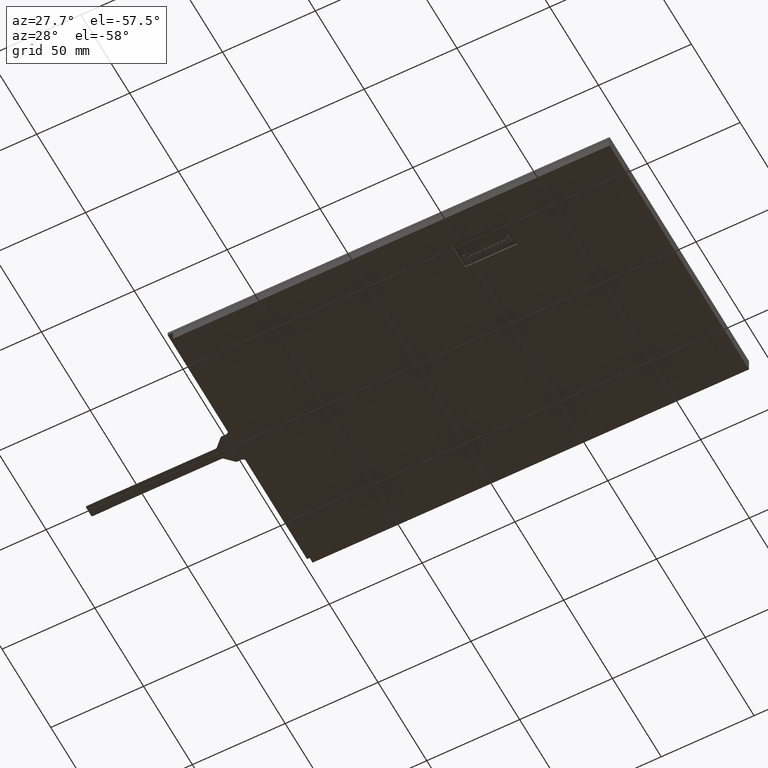
[diagram: clean part render]
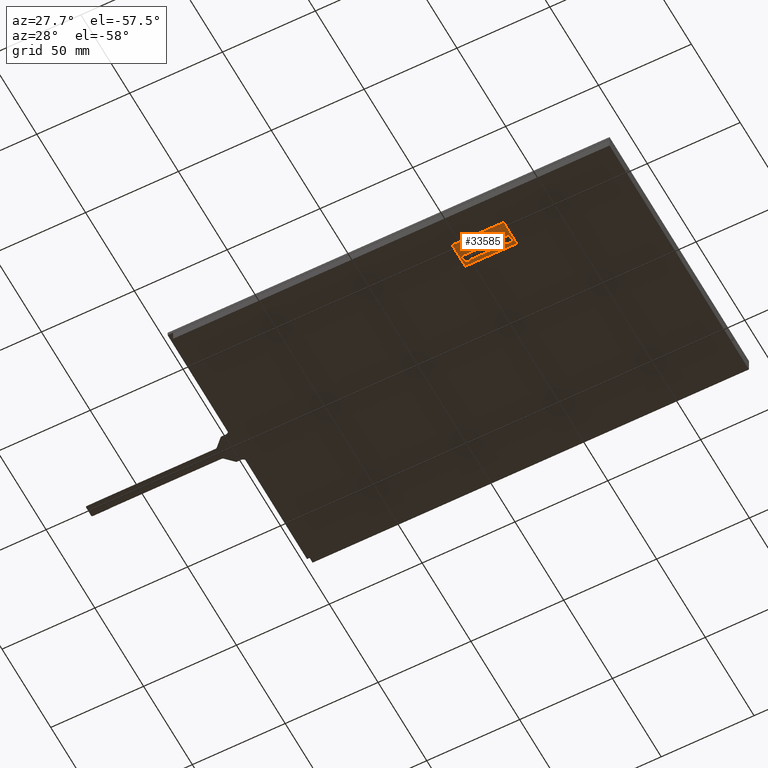
[diagram: same view with one face highlighted and labeled with its STEP entity id]
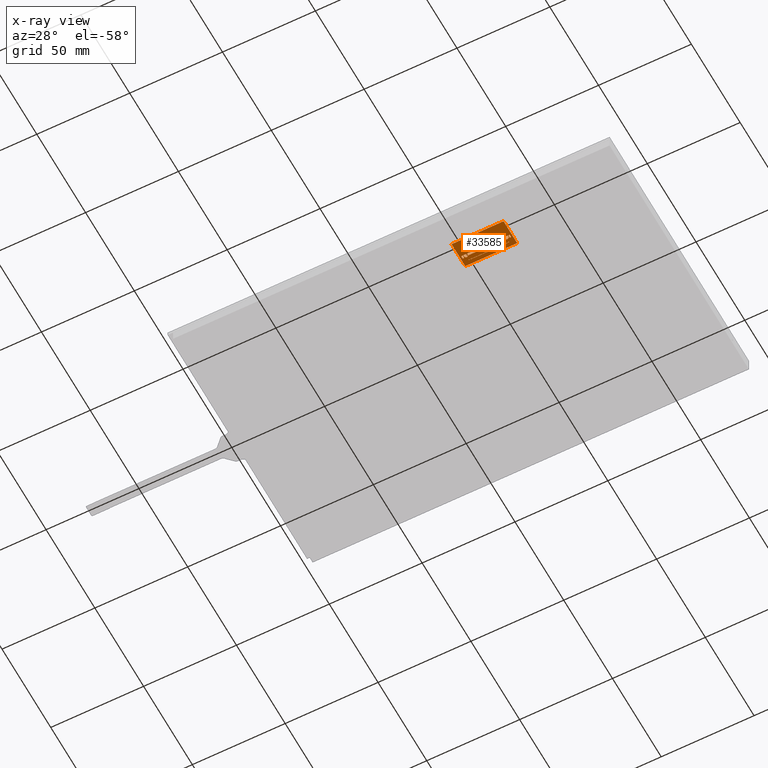
[diagram: x-ray of the same camera — body ghosted, the highlighted face saturated]
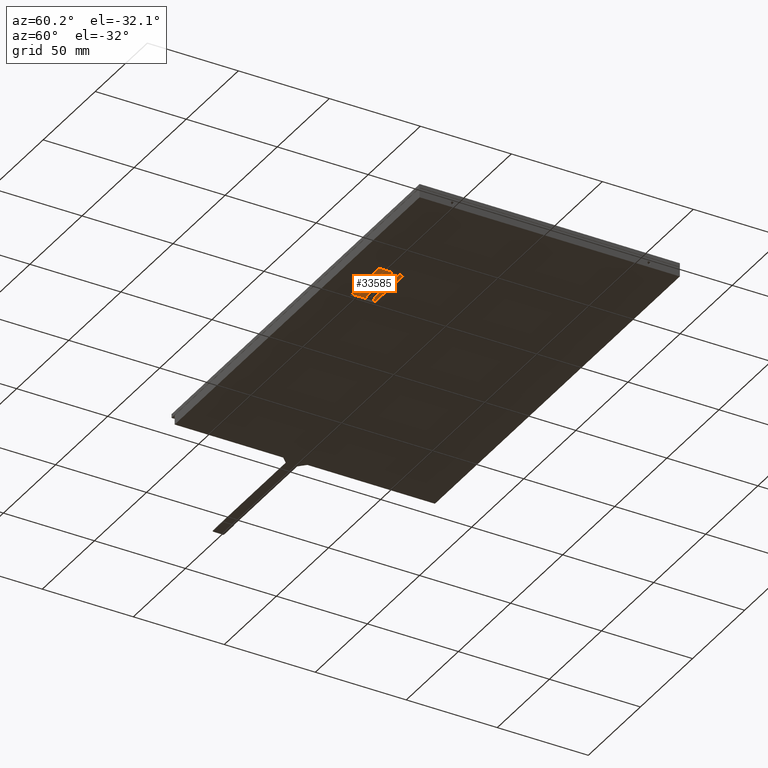
[diagram: same view with one face highlighted and labeled with its STEP entity id]
A machine part, auxiliary view. The second image highlights one B-rep face of the part: STEP entity #33585.
The next image is the same camera in x-ray: the body ghosted, the highlighted face saturated — about 0% of this face is hidden behind the body in this view.
A second angle (auxiliary view) of the same face is appended — the face is thin or edge-on in the first view.
In plain terms, the highlighted planar face has unit normal (-0, 0, 1).
Its self-contained STEP definition (entity closure, byte-faithful):
#801=CIRCLE('',#35353,0.3);
#805=CIRCLE('',#35371,0.3);
#814=CIRCLE('',#35392,0.3);
#871=CIRCLE('',#35465,0.3);
#1055=CIRCLE('',#35952,0.1);
#1056=CIRCLE('',#35955,0.1);
#1058=CIRCLE('',#35960,0.1);
#1061=CIRCLE('',#35965,0.1);
#1072=CIRCLE('',#36007,0.05);
#1074=CIRCLE('',#36010,0.05);
#1100=CIRCLE('',#36091,0.1);
#1105=CIRCLE('',#36098,0.1);
#1118=CIRCLE('',#36187,0.1);
#1119=CIRCLE('',#36190,0.1);
#1853=FACE_BOUND('',#5310,.T.);
#1854=FACE_BOUND('',#5311,.T.);
#1855=FACE_BOUND('',#5312,.T.);
#1856=FACE_BOUND('',#5313,.T.);
#1857=FACE_BOUND('',#5314,.T.);
#1858=FACE_BOUND('',#5315,.T.);
#1859=FACE_BOUND('',#5316,.T.);
#1860=FACE_BOUND('',#5317,.T.);
#1861=FACE_BOUND('',#5318,.T.);
#1862=FACE_BOUND('',#5319,.T.);
#1863=FACE_BOUND('',#5320,.T.);
#1864=FACE_BOUND('',#5321,.T.);
#1865=FACE_BOUND('',#5322,.T.);
#1866=FACE_BOUND('',#5323,.T.);
#1867=FACE_BOUND('',#5324,.T.);
#1868=FACE_BOUND('',#5325,.T.);
#1869=FACE_BOUND('',#5326,.T.);
#1870=FACE_BOUND('',#5327,.T.);
#1871=FACE_BOUND('',#5328,.T.);
#1872=FACE_BOUND('',#5329,.T.);
#1873=FACE_BOUND('',#5330,.T.);
#1874=FACE_BOUND('',#5331,.T.);
#1875=FACE_BOUND('',#5332,.T.);
#1876=FACE_BOUND('',#5333,.T.);
#1877=FACE_BOUND('',#5334,.T.);
#1878=FACE_BOUND('',#5335,.T.);
#1879=FACE_BOUND('',#5336,.T.);
#1880=FACE_BOUND('',#5337,.T.);
#1881=FACE_BOUND('',#5338,.T.);
#1882=FACE_BOUND('',#5339,.T.);
#1883=FACE_BOUND('',#5340,.T.);
#1884=FACE_BOUND('',#5341,.T.);
#1885=FACE_BOUND('',#5342,.T.);
#1886=FACE_BOUND('',#5343,.T.);
#1887=FACE_BOUND('',#5344,.T.);
#1888=FACE_BOUND('',#5345,.T.);
#1889=FACE_BOUND('',#5346,.T.);
#1890=FACE_BOUND('',#5347,.T.);
#1891=FACE_BOUND('',#5348,.T.);
#1892=FACE_BOUND('',#5349,.T.);
#1893=FACE_BOUND('',#5350,.T.);
#1894=FACE_BOUND('',#5351,.T.);
#1895=FACE_BOUND('',#5352,.T.);
#1896=FACE_BOUND('',#5353,.T.);
#1897=FACE_BOUND('',#5354,.T.);
#3552=FACE_OUTER_BOUND('',#5309,.T.);
#5309=EDGE_LOOP('',(#30501,#30502,#30503,#30504));
#5310=EDGE_LOOP('',(#30505,#30506,#30507,#30508));
#5311=EDGE_LOOP('',(#30509,#30510,#30511,#30512));
#5312=EDGE_LOOP('',(#30513,#30514,#30515,#30516));
#5313=EDGE_LOOP('',(#30517,#30518,#30519,#30520));
#5314=EDGE_LOOP('',(#30521,#30522,#30523,#30524));
#5315=EDGE_LOOP('',(#30525,#30526,#30527,#30528));
#5316=EDGE_LOOP('',(#30529,#30530,#30531,#30532));
#5317=EDGE_LOOP('',(#30533,#30534,#30535,#30536));
#5318=EDGE_LOOP('',(#30537,#30538,#30539,#30540));
#5319=EDGE_LOOP('',(#30541,#30542,#30543,#30544));
#5320=EDGE_LOOP('',(#30545,#30546,#30547,#30548));
#5321=EDGE_LOOP('',(#30549,#30550,#30551,#30552));
#5322=EDGE_LOOP('',(#30553,#30554,#30555,#30556));
#5323=EDGE_LOOP('',(#30557,#30558,#30559,#30560));
#5324=EDGE_LOOP('',(#30561,#30562,#30563,#30564));
#5325=EDGE_LOOP('',(#30565,#30566,#30567,#30568));
#5326=EDGE_LOOP('',(#30569,#30570,#30571,#30572));
#5327=EDGE_LOOP('',(#30573,#30574,#30575,#30576));
#5328=EDGE_LOOP('',(#30577,#30578,#30579,#30580));
#5329=EDGE_LOOP('',(#30581,#30582,#30583,#30584));
#5330=EDGE_LOOP('',(#30585,#30586,#30587,#30588));
#5331=EDGE_LOOP('',(#30589,#30590,#30591,#30592));
#5332=EDGE_LOOP('',(#30593,#30594,#30595,#30596));
#5333=EDGE_LOOP('',(#30597,#30598,#30599,#30600));
#5334=EDGE_LOOP('',(#30601,#30602,#30603,#30604));
#5335=EDGE_LOOP('',(#30605,#30606,#30607,#30608));
#5336=EDGE_LOOP('',(#30609,#30610,#30611,#30612));
#5337=EDGE_LOOP('',(#30613,#30614,#30615,#30616));
#5338=EDGE_LOOP('',(#30617,#30618,#30619,#30620));
#5339=EDGE_LOOP('',(#30621,#30622,#30623,#30624));
#5340=EDGE_LOOP('',(#30625,#30626,#30627,#30628));
#5341=EDGE_LOOP('',(#30629,#30630,#30631,#30632));
#5342=EDGE_LOOP('',(#30633,#30634,#30635,#30636));
#5343=EDGE_LOOP('',(#30637,#30638,#30639,#30640));
#5344=EDGE_LOOP('',(#30641,#30642,#30643,#30644));
#5345=EDGE_LOOP('',(#30645,#30646,#30647,#30648));
#5346=EDGE_LOOP('',(#30649,#30650,#30651,#30652));
#5347=EDGE_LOOP('',(#30653,#30654,#30655,#30656));
#5348=EDGE_LOOP('',(#30657,#30658,#30659,#30660));
#5349=EDGE_LOOP('',(#30661,#30662,#30663,#30664));
#5350=EDGE_LOOP('',(#30665,#30666,#30667,#30668,#30669,#30670));
#5351=EDGE_LOOP('',(#30671,#30672,#30673,#30674,#30675,#30676));
#5352=EDGE_LOOP('',(#30677,#30678,#30679,#30680,#30681,#30682));
#5353=EDGE_LOOP('',(#30683,#30684,#30685,#30686,#30687,#30688));
#5354=EDGE_LOOP('',(#30689,#30690,#30691,#30692,#30693,#30694,#30695,#30696,
#30697,#30698,#30699,#30700,#30701,#30702,#30703,#30704,#30705,#30706,#30707,
#30708,#30709,#30710,#30711,#30712,#30713,#30714,#30715,#30716,#30717,#30718,
#30719,#30720,#30721,#30722,#30723,#30724,#30725,#30726));
#5660=LINE('',#46374,#9388);
#5662=LINE('',#46381,#9390);
#5682=LINE('',#46428,#9410);
#5684=LINE('',#46435,#9412);
#5704=LINE('',#46482,#9432);
#5706=LINE('',#46489,#9434);
#5726=LINE('',#46536,#9454);
#5728=LINE('',#46543,#9456);
#5748=LINE('',#46590,#9476);
#5750=LINE('',#46597,#9478);
#5770=LINE('',#46644,#9498);
#5772=LINE('',#46651,#9500);
#5792=LINE('',#46698,#9520);
#5794=LINE('',#46705,#9522);
#5814=LINE('',#46752,#9542);
#5816=LINE('',#46759,#9544);
#5836=LINE('',#46806,#9564);
#5838=LINE('',#46813,#9566);
#5858=LINE('',#46860,#9586);
#5860=LINE('',#46867,#9588);
#5880=LINE('',#46914,#9608);
#5882=LINE('',#46921,#9610);
#5902=LINE('',#46968,#9630);
#5904=LINE('',#46975,#9632);
#5924=LINE('',#47022,#9652);
#5926=LINE('',#47029,#9654);
#5946=LINE('',#47076,#9674);
#5948=LINE('',#47083,#9676);
#5968=LINE('',#47130,#9696);
#5970=LINE('',#47137,#9698);
#5990=LINE('',#47184,#9718);
#5992=LINE('',#47191,#9720);
#6012=LINE('',#47238,#9740);
#6014=LINE('',#47245,#9742);
#6034=LINE('',#47292,#9762);
#6036=LINE('',#47299,#9764);
#6056=LINE('',#47346,#9784);
#6058=LINE('',#47353,#9786);
#6078=LINE('',#47400,#9806);
#6080=LINE('',#47407,#9808);
#6100=LINE('',#47454,#9828);
#6102=LINE('',#47461,#9830);
#6122=LINE('',#47508,#9850);
#6124=LINE('',#47515,#9852);
#6144=LINE('',#47562,#9872);
#6146=LINE('',#47569,#9874);
#6166=LINE('',#47616,#9894);
#6168=LINE('',#47623,#9896);
#6188=LINE('',#47670,#9916);
#6190=LINE('',#47677,#9918);
#6210=LINE('',#47724,#9938);
#6212=LINE('',#47731,#9940);
#6232=LINE('',#47778,#9960);
#6234=LINE('',#47785,#9962);
#6254=LINE('',#47832,#9982);
#6256=LINE('',#47839,#9984);
#6276=LINE('',#47886,#10004);
#6278=LINE('',#47893,#10006);
#6298=LINE('',#47940,#10026);
#6300=LINE('',#47947,#10028);
#6320=LINE('',#47994,#10048);
#6322=LINE('',#48001,#10050);
#6342=LINE('',#48048,#10070);
#6344=LINE('',#48055,#10072);
#6364=LINE('',#48102,#10092);
#6366=LINE('',#48109,#10094);
#6386=LINE('',#48156,#10114);
#6388=LINE('',#48163,#10116);
#6408=LINE('',#48210,#10136);
#6410=LINE('',#48217,#10138);
#6430=LINE('',#48264,#10158);
#6432=LINE('',#48271,#10160);
#6452=LINE('',#48318,#10180);
#6454=LINE('',#48325,#10182);
#6474=LINE('',#48372,#10202);
#6476=LINE('',#48379,#10204);
#6496=LINE('',#48426,#10224);
#6498=LINE('',#48433,#10226);
#6518=LINE('',#48480,#10246);
#6520=LINE('',#48487,#10248);
#6538=LINE('',#48532,#10266);
#6543=LINE('',#48543,#10271);
#6548=LINE('',#48558,#10276);
#6553=LINE('',#48569,#10281);
#6558=LINE('',#48584,#10286);
#6563=LINE('',#48595,#10291);
#6568=LINE('',#48610,#10296);
#6573=LINE('',#48621,#10301);
#6578=LINE('',#48636,#10306);
#6583=LINE('',#48647,#10311);
#6588=LINE('',#48662,#10316);
#6593=LINE('',#48673,#10321);
#6598=LINE('',#48688,#10326);
#6603=LINE('',#48699,#10331);
#6608=LINE('',#48714,#10336);
#6613=LINE('',#48725,#10341);
#6618=LINE('',#48740,#10346);
#6623=LINE('',#48751,#10351);
#6628=LINE('',#48766,#10356);
#6633=LINE('',#48777,#10361);
#6638=LINE('',#48792,#10366);
#6643=LINE('',#48803,#10371);
#6648=LINE('',#48818,#10376);
#6653=LINE('',#48829,#10381);
#6658=LINE('',#48844,#10386);
#6663=LINE('',#48855,#10391);
#6668=LINE('',#48870,#10396);
#6673=LINE('',#48881,#10401);
#6678=LINE('',#48896,#10406);
#6683=LINE('',#48907,#10411);
#6688=LINE('',#48922,#10416);
#6693=LINE('',#48933,#10421);
#6698=LINE('',#48948,#10426);
#6703=LINE('',#48959,#10431);
#6708=LINE('',#48974,#10436);
#6713=LINE('',#48985,#10441);
#6718=LINE('',#49000,#10446);
#6723=LINE('',#49011,#10451);
#6728=LINE('',#49026,#10456);
#6733=LINE('',#49037,#10461);
#6738=LINE('',#49052,#10466);
#6743=LINE('',#49063,#10471);
#6748=LINE('',#49078,#10476);
#6753=LINE('',#49089,#10481);
#6758=LINE('',#49104,#10486);
#6763=LINE('',#49115,#10491);
#6768=LINE('',#49130,#10496);
#6773=LINE('',#49141,#10501);
#6778=LINE('',#49156,#10506);
#6783=LINE('',#49167,#10511);
#6788=LINE('',#49182,#10516);
#6793=LINE('',#49193,#10521);
#6798=LINE('',#49208,#10526);
#6803=LINE('',#49219,#10531);
#6808=LINE('',#49234,#10536);
#6813=LINE('',#49245,#10541);
#6818=LINE('',#49260,#10546);
#6823=LINE('',#49271,#10551);
#6828=LINE('',#49286,#10556);
#6833=LINE('',#49297,#10561);
#6838=LINE('',#49312,#10566);
#6843=LINE('',#49323,#10571);
#6848=LINE('',#49338,#10576);
#6853=LINE('',#49349,#10581);
#6858=LINE('',#49364,#10586);
#6863=LINE('',#49375,#10591);
#6868=LINE('',#49390,#10596);
#6873=LINE('',#49401,#10601);
#6878=LINE('',#49416,#10606);
#6883=LINE('',#49427,#10611);
#6888=LINE('',#49442,#10616);
#6893=LINE('',#49453,#10621);
#6898=LINE('',#49468,#10626);
#6903=LINE('',#49479,#10631);
#6908=LINE('',#49494,#10636);
#6913=LINE('',#49505,#10641);
#6918=LINE('',#49520,#10646);
#6923=LINE('',#49531,#10651);
#6928=LINE('',#49546,#10656);
#6933=LINE('',#49557,#10661);
#7422=LINE('',#50902,#11150);
#7467=LINE('',#50979,#11195);
#7479=LINE('',#51008,#11207);
#7480=LINE('',#51014,#11208);
#7482=LINE('',#51020,#11210);
#7495=LINE('',#51053,#11223);
#7502=LINE('',#51076,#11230);
#7505=LINE('',#51086,#11233);
#7622=LINE('',#51402,#11350);
#7627=LINE('',#51411,#11355);
#7640=LINE('',#51436,#11368);
#7645=LINE('',#51449,#11373);
#7648=LINE('',#51459,#11376);
#7665=LINE('',#51497,#11393);
#7669=LINE('',#51510,#11397);
#7706=LINE('',#51613,#11434);
#8268=LINE('',#53957,#11996);
#8271=LINE('',#53964,#11999);
#8272=LINE('',#53971,#12000);
#8274=LINE('',#53978,#12002);
#8277=LINE('',#53987,#12005);
#8278=LINE('',#53992,#12006);
#8279=LINE('',#53999,#12007);
#8347=LINE('',#54173,#12075);
#8376=LINE('',#54259,#12104);
#8484=LINE('',#54562,#12212);
#8561=LINE('',#54953,#12289);
#8563=LINE('',#54960,#12291);
#8567=LINE('',#54968,#12295);
#8570=LINE('',#54977,#12298);
#8573=LINE('',#54987,#12301);
#8578=LINE('',#55001,#12306);
#8582=LINE('',#55010,#12310);
#8585=LINE('',#55020,#12313);
#8590=LINE('',#55034,#12318);
#8592=LINE('',#55041,#12320);
#8596=LINE('',#55048,#12324);
#8598=LINE('',#55055,#12326);
#8655=LINE('',#55173,#12383);
#8659=LINE('',#55194,#12387);
#8847=LINE('',#55625,#12575);
#8849=LINE('',#55628,#12577);
#8851=LINE('',#55631,#12579);
#8854=LINE('',#55640,#12582);
#8907=LINE('',#55751,#12635);
#8910=LINE('',#55761,#12638);
#9039=LINE('',#56066,#12767);
#9043=LINE('',#56077,#12771);
#9079=LINE('',#57057,#12807);
#9080=LINE('',#57059,#12808);
#9081=LINE('',#57061,#12809);
#9082=LINE('',#57062,#12810);
#9388=VECTOR('',#37011,10.);
#9390=VECTOR('',#37017,10.);
#9410=VECTOR('',#37057,10.);
#9412=VECTOR('',#37063,10.);
#9432=VECTOR('',#37103,10.);
#9434=VECTOR('',#37109,10.);
#9454=VECTOR('',#37149,10.);
#9456=VECTOR('',#37155,10.);
#9476=VECTOR('',#37195,10.);
#9478=VECTOR('',#37201,10.);
#9498=VECTOR('',#37241,10.);
#9500=VECTOR('',#37247,10.);
#9520=VECTOR('',#37287,10.);
#9522=VECTOR('',#37293,10.);
#9542=VECTOR('',#37333,10.);
#9544=VECTOR('',#37339,10.);
#9564=VECTOR('',#37379,10.);
#9566=VECTOR('',#37385,10.);
#9586=VECTOR('',#37425,10.);
#9588=VECTOR('',#37431,10.);
#9608=VECTOR('',#37471,10.);
#9610=VECTOR('',#37477,10.);
#9630=VECTOR('',#37517,10.);
#9632=VECTOR('',#37523,10.);
#9652=VECTOR('',#37563,10.);
#9654=VECTOR('',#37569,10.);
#9674=VECTOR('',#37609,10.);
#9676=VECTOR('',#37615,10.);
#9696=VECTOR('',#37655,10.);
#9698=VECTOR('',#37661,10.);
#9718=VECTOR('',#37701,10.);
#9720=VECTOR('',#37707,10.);
#9740=VECTOR('',#37747,10.);
#9742=VECTOR('',#37753,10.);
#9762=VECTOR('',#37793,10.);
#9764=VECTOR('',#37799,10.);
#9784=VECTOR('',#37839,10.);
#9786=VECTOR('',#37845,10.);
#9806=VECTOR('',#37885,10.);
#9808=VECTOR('',#37891,10.);
#9828=VECTOR('',#37931,10.);
#9830=VECTOR('',#37937,10.);
#9850=VECTOR('',#37977,10.);
#9852=VECTOR('',#37983,10.);
#9872=VECTOR('',#38023,10.);
#9874=VECTOR('',#38029,10.);
#9894=VECTOR('',#38069,10.);
#9896=VECTOR('',#38075,10.);
#9916=VECTOR('',#38115,10.);
#9918=VECTOR('',#38121,10.);
#9938=VECTOR('',#38161,10.);
#9940=VECTOR('',#38167,10.);
#9960=VECTOR('',#38207,10.);
#9962=VECTOR('',#38213,10.);
#9982=VECTOR('',#38253,10.);
#9984=VECTOR('',#38259,10.);
#10004=VECTOR('',#38299,10.);
#10006=VECTOR('',#38305,10.);
#10026=VECTOR('',#38345,10.);
#10028=VECTOR('',#38351,10.);
#10048=VECTOR('',#38391,10.);
#10050=VECTOR('',#38397,10.);
#10070=VECTOR('',#38437,10.);
#10072=VECTOR('',#38443,10.);
#10092=VECTOR('',#38483,10.);
#10094=VECTOR('',#38489,10.);
#10114=VECTOR('',#38529,10.);
#10116=VECTOR('',#38535,10.);
#10136=VECTOR('',#38575,10.);
#10138=VECTOR('',#38581,10.);
#10158=VECTOR('',#38621,10.);
#10160=VECTOR('',#38627,10.);
#10180=VECTOR('',#38667,10.);
#10182=VECTOR('',#38673,10.);
#10202=VECTOR('',#38713,10.);
#10204=VECTOR('',#38719,10.);
#10224=VECTOR('',#38759,10.);
#10226=VECTOR('',#38765,10.);
#10246=VECTOR('',#38805,10.);
#10248=VECTOR('',#38811,10.);
#10266=VECTOR('',#38853,10.);
#10271=VECTOR('',#38864,10.);
#10276=VECTOR('',#38879,10.);
#10281=VECTOR('',#38890,10.);
#10286=VECTOR('',#38905,10.);
#10291=VECTOR('',#38916,10.);
#10296=VECTOR('',#38931,10.);
#10301=VECTOR('',#38942,10.);
#10306=VECTOR('',#38957,10.);
#10311=VECTOR('',#38968,10.);
#10316=VECTOR('',#38983,10.);
#10321=VECTOR('',#38994,10.);
#10326=VECTOR('',#39009,10.);
#10331=VECTOR('',#39020,10.);
#10336=VECTOR('',#39035,10.);
#10341=VECTOR('',#39046,10.);
#10346=VECTOR('',#39061,10.);
#10351=VECTOR('',#39072,10.);
#10356=VECTOR('',#39087,10.);
#10361=VECTOR('',#39098,10.);
#10366=VECTOR('',#39113,10.);
#10371=VECTOR('',#39124,10.);
#10376=VECTOR('',#39139,10.);
#10381=VECTOR('',#39150,10.);
#10386=VECTOR('',#39165,10.);
#10391=VECTOR('',#39176,10.);
#10396=VECTOR('',#39191,10.);
#10401=VECTOR('',#39202,10.);
#10406=VECTOR('',#39217,10.);
#10411=VECTOR('',#39228,10.);
#10416=VECTOR('',#39243,10.);
#10421=VECTOR('',#39254,10.);
#10426=VECTOR('',#39269,10.);
#10431=VECTOR('',#39280,10.);
#10436=VECTOR('',#39295,10.);
#10441=VECTOR('',#39306,10.);
#10446=VECTOR('',#39321,10.);
#10451=VECTOR('',#39332,10.);
#10456=VECTOR('',#39347,10.);
#10461=VECTOR('',#39358,10.);
#10466=VECTOR('',#39373,10.);
#10471=VECTOR('',#39384,10.);
#10476=VECTOR('',#39399,10.);
#10481=VECTOR('',#39410,10.);
#10486=VECTOR('',#39425,10.);
#10491=VECTOR('',#39436,10.);
#10496=VECTOR('',#39451,10.);
#10501=VECTOR('',#39462,10.);
#10506=VECTOR('',#39477,10.);
#10511=VECTOR('',#39488,10.);
#10516=VECTOR('',#39503,10.);
#10521=VECTOR('',#39514,10.);
#10526=VECTOR('',#39529,10.);
#10531=VECTOR('',#39540,10.);
#10536=VECTOR('',#39555,10.);
#10541=VECTOR('',#39566,10.);
#10546=VECTOR('',#39581,10.);
#10551=VECTOR('',#39592,10.);
#10556=VECTOR('',#39607,10.);
#10561=VECTOR('',#39618,10.);
#10566=VECTOR('',#39633,10.);
#10571=VECTOR('',#39644,10.);
#10576=VECTOR('',#39659,10.);
#10581=VECTOR('',#39670,10.);
#10586=VECTOR('',#39685,10.);
#10591=VECTOR('',#39696,10.);
#10596=VECTOR('',#39711,10.);
#10601=VECTOR('',#39722,10.);
#10606=VECTOR('',#39737,10.);
#10611=VECTOR('',#39748,10.);
#10616=VECTOR('',#39763,10.);
#10621=VECTOR('',#39774,10.);
#10626=VECTOR('',#39789,10.);
#10631=VECTOR('',#39800,10.);
#10636=VECTOR('',#39815,10.);
#10641=VECTOR('',#39826,10.);
#10646=VECTOR('',#39841,10.);
#10651=VECTOR('',#39852,10.);
#10656=VECTOR('',#39867,10.);
#10661=VECTOR('',#39878,10.);
#11150=VECTOR('',#41267,10.);
#11195=VECTOR('',#41342,10.);
#11207=VECTOR('',#41364,10.);
#11208=VECTOR('',#41369,10.);
#11210=VECTOR('',#41375,10.);
#11223=VECTOR('',#41406,10.);
#11230=VECTOR('',#41429,10.);
#11233=VECTOR('',#41438,10.);
#11350=VECTOR('',#41697,10.);
#11355=VECTOR('',#41706,10.);
#11368=VECTOR('',#41731,10.);
#11373=VECTOR('',#41744,10.);
#11376=VECTOR('',#41753,10.);
#11393=VECTOR('',#41788,10.);
#11397=VECTOR('',#41800,10.);
#11434=VECTOR('',#41893,10.);
#11996=VECTOR('',#43327,10.);
#11999=VECTOR('',#43332,10.);
#12000=VECTOR('',#43341,10.);
#12002=VECTOR('',#43347,10.);
#12005=VECTOR('',#43356,10.);
#12006=VECTOR('',#43361,10.);
#12007=VECTOR('',#43370,10.);
#12075=VECTOR('',#43548,10.);
#12104=VECTOR('',#43647,10.);
#12212=VECTOR('',#43981,10.);
#12289=VECTOR('',#44220,10.);
#12291=VECTOR('',#44228,10.);
#12295=VECTOR('',#44236,10.);
#12298=VECTOR('',#44245,10.);
#12301=VECTOR('',#44256,10.);
#12306=VECTOR('',#44269,10.);
#12310=VECTOR('',#44275,10.);
#12313=VECTOR('',#44286,10.);
#12318=VECTOR('',#44301,10.);
#12320=VECTOR('',#44309,10.);
#12324=VECTOR('',#44315,10.);
#12326=VECTOR('',#44325,10.);
#12383=VECTOR('',#44438,10.);
#12387=VECTOR('',#44460,10.);
#12575=VECTOR('',#44872,10.);
#12577=VECTOR('',#44876,10.);
#12579=VECTOR('',#44880,10.);
#12582=VECTOR('',#44891,10.);
#12635=VECTOR('',#45000,10.);
#12638=VECTOR('',#45011,10.);
#12767=VECTOR('',#45292,10.);
#12771=VECTOR('',#45304,10.);
#12807=VECTOR('',#45600,10.);
#12808=VECTOR('',#45601,10.);
#12809=VECTOR('',#45602,10.);
#12810=VECTOR('',#45603,10.);
#13066=VERTEX_POINT('',#46371);
#13067=VERTEX_POINT('',#46373);
#13069=VERTEX_POINT('',#46378);
#13070=VERTEX_POINT('',#46380);
#13086=VERTEX_POINT('',#46425);
#13087=VERTEX_POINT('',#46427);
#13089=VERTEX_POINT('',#46432);
#13090=VERTEX_POINT('',#46434);
#13106=VERTEX_POINT('',#46479);
#13107=VERTEX_POINT('',#46481);
#13109=VERTEX_POINT('',#46486);
#13110=VERTEX_POINT('',#46488);
#13126=VERTEX_POINT('',#46533);
#13127=VERTEX_POINT('',#46535);
#13129=VERTEX_POINT('',#46540);
#13130=VERTEX_POINT('',#46542);
#13146=VERTEX_POINT('',#46587);
#13147=VERTEX_POINT('',#46589);
#13149=VERTEX_POINT('',#46594);
#13150=VERTEX_POINT('',#46596);
#13166=VERTEX_POINT('',#46641);
#13167=VERTEX_POINT('',#46643);
#13169=VERTEX_POINT('',#46648);
#13170=VERTEX_POINT('',#46650);
#13186=VERTEX_POINT('',#46695);
#13187=VERTEX_POINT('',#46697);
#13189=VERTEX_POINT('',#46702);
#13190=VERTEX_POINT('',#46704);
#13206=VERTEX_POINT('',#46749);
#13207=VERTEX_POINT('',#46751);
#13209=VERTEX_POINT('',#46756);
#13210=VERTEX_POINT('',#46758);
#13226=VERTEX_POINT('',#46803);
#13227=VERTEX_POINT('',#46805);
#13229=VERTEX_POINT('',#46810);
#13230=VERTEX_POINT('',#46812);
#13246=VERTEX_POINT('',#46857);
#13247=VERTEX_POINT('',#46859);
#13249=VERTEX_POINT('',#46864);
#13250=VERTEX_POINT('',#46866);
#13266=VERTEX_POINT('',#46911);
#13267=VERTEX_POINT('',#46913);
#13269=VERTEX_POINT('',#46918);
#13270=VERTEX_POINT('',#46920);
#13286=VERTEX_POINT('',#46965);
#13287=VERTEX_POINT('',#46967);
#13289=VERTEX_POINT('',#46972);
#13290=VERTEX_POINT('',#46974);
#13306=VERTEX_POINT('',#47019);
#13307=VERTEX_POINT('',#47021);
#13309=VERTEX_POINT('',#47026);
#13310=VERTEX_POINT('',#47028);
#13326=VERTEX_POINT('',#47073);
#13327=VERTEX_POINT('',#47075);
#13329=VERTEX_POINT('',#47080);
#13330=VERTEX_POINT('',#47082);
#13346=VERTEX_POINT('',#47127);
#13347=VERTEX_POINT('',#47129);
#13349=VERTEX_POINT('',#47134);
#13350=VERTEX_POINT('',#47136);
#13366=VERTEX_POINT('',#47181);
#13367=VERTEX_POINT('',#47183);
#13369=VERTEX_POINT('',#47188);
#13370=VERTEX_POINT('',#47190);
#13386=VERTEX_POINT('',#47235);
#13387=VERTEX_POINT('',#47237);
#13389=VERTEX_POINT('',#47242);
#13390=VERTEX_POINT('',#47244);
#13406=VERTEX_POINT('',#47289);
#13407=VERTEX_POINT('',#47291);
#13409=VERTEX_POINT('',#47296);
#13410=VERTEX_POINT('',#47298);
#13426=VERTEX_POINT('',#47343);
#13427=VERTEX_POINT('',#47345);
#13429=VERTEX_POINT('',#47350);
#13430=VERTEX_POINT('',#47352);
#13446=VERTEX_POINT('',#47397);
#13447=VERTEX_POINT('',#47399);
#13449=VERTEX_POINT('',#47404);
#13450=VERTEX_POINT('',#47406);
#13466=VERTEX_POINT('',#47451);
#13467=VERTEX_POINT('',#47453);
#13469=VERTEX_POINT('',#47458);
#13470=VERTEX_POINT('',#47460);
#13486=VERTEX_POINT('',#47505);
#13487=VERTEX_POINT('',#47507);
#13489=VERTEX_POINT('',#47512);
#13490=VERTEX_POINT('',#47514);
#13506=VERTEX_POINT('',#47559);
#13507=VERTEX_POINT('',#47561);
#13509=VERTEX_POINT('',#47566);
#13510=VERTEX_POINT('',#47568);
#13526=VERTEX_POINT('',#47613);
#13527=VERTEX_POINT('',#47615);
#13529=VERTEX_POINT('',#47620);
#13530=VERTEX_POINT('',#47622);
#13546=VERTEX_POINT('',#47667);
#13547=VERTEX_POINT('',#47669);
#13549=VERTEX_POINT('',#47674);
#13550=VERTEX_POINT('',#47676);
#13566=VERTEX_POINT('',#47721);
#13567=VERTEX_POINT('',#47723);
#13569=VERTEX_POINT('',#47728);
#13570=VERTEX_POINT('',#47730);
#13586=VERTEX_POINT('',#47775);
#13587=VERTEX_POINT('',#47777);
#13589=VERTEX_POINT('',#47782);
#13590=VERTEX_POINT('',#47784);
#13606=VERTEX_POINT('',#47829);
#13607=VERTEX_POINT('',#47831);
#13609=VERTEX_POINT('',#47836);
#13610=VERTEX_POINT('',#47838);
#13626=VERTEX_POINT('',#47883);
#13627=VERTEX_POINT('',#47885);
#13629=VERTEX_POINT('',#47890);
#13630=VERTEX_POINT('',#47892);
#13646=VERTEX_POINT('',#47937);
#13647=VERTEX_POINT('',#47939);
#13649=VERTEX_POINT('',#47944);
#13650=VERTEX_POINT('',#47946);
#13666=VERTEX_POINT('',#47991);
#13667=VERTEX_POINT('',#47993);
#13669=VERTEX_POINT('',#47998);
#13670=VERTEX_POINT('',#48000);
#13686=VERTEX_POINT('',#48045);
#13687=VERTEX_POINT('',#48047);
#13689=VERTEX_POINT('',#48052);
#13690=VERTEX_POINT('',#48054);
#13706=VERTEX_POINT('',#48099);
#13707=VERTEX_POINT('',#48101);
#13709=VERTEX_POINT('',#48106);
#13710=VERTEX_POINT('',#48108);
#13726=VERTEX_POINT('',#48153);
#13727=VERTEX_POINT('',#48155);
#13729=VERTEX_POINT('',#48160);
#13730=VERTEX_POINT('',#48162);
#13746=VERTEX_POINT('',#48207);
#13747=VERTEX_POINT('',#48209);
#13749=VERTEX_POINT('',#48214);
#13750=VERTEX_POINT('',#48216);
#13766=VERTEX_POINT('',#48261);
#13767=VERTEX_POINT('',#48263);
#13769=VERTEX_POINT('',#48268);
#13770=VERTEX_POINT('',#48270);
#13786=VERTEX_POINT('',#48315);
#13787=VERTEX_POINT('',#48317);
#13789=VERTEX_POINT('',#48322);
#13790=VERTEX_POINT('',#48324);
#13806=VERTEX_POINT('',#48369);
#13807=VERTEX_POINT('',#48371);
#13809=VERTEX_POINT('',#48376);
#13810=VERTEX_POINT('',#48378);
#13826=VERTEX_POINT('',#48423);
#13827=VERTEX_POINT('',#48425);
#13829=VERTEX_POINT('',#48430);
#13830=VERTEX_POINT('',#48432);
#13846=VERTEX_POINT('',#48477);
#13847=VERTEX_POINT('',#48479);
#13849=VERTEX_POINT('',#48484);
#13850=VERTEX_POINT('',#48486);
#14585=VERTEX_POINT('',#50899);
#14586=VERTEX_POINT('',#50901);
#14602=VERTEX_POINT('',#50975);
#14603=VERTEX_POINT('',#50977);
#14615=VERTEX_POINT('',#51006);
#14617=VERTEX_POINT('',#51011);
#14618=VERTEX_POINT('',#51013);
#14620=VERTEX_POINT('',#51019);
#14630=VERTEX_POINT('',#51049);
#14639=VERTEX_POINT('',#51075);
#14640=VERTEX_POINT('',#51079);
#14643=VERTEX_POINT('',#51084);
#14785=VERTEX_POINT('',#51453);
#14787=VERTEX_POINT('',#51457);
#14798=VERTEX_POINT('',#51494);
#14799=VERTEX_POINT('',#51496);
#14802=VERTEX_POINT('',#51506);
#14804=VERTEX_POINT('',#51509);
#14841=VERTEX_POINT('',#51610);
#14842=VERTEX_POINT('',#51612);
#15027=VERTEX_POINT('',#52193);
#15061=VERTEX_POINT('',#52291);
#15088=VERTEX_POINT('',#52361);
#15214=VERTEX_POINT('',#52653);
#15406=VERTEX_POINT('',#53962);
#15407=VERTEX_POINT('',#53963);
#15408=VERTEX_POINT('',#53968);
#15409=VERTEX_POINT('',#53970);
#15411=VERTEX_POINT('',#53975);
#15412=VERTEX_POINT('',#53977);
#15414=VERTEX_POINT('',#53983);
#15415=VERTEX_POINT('',#53985);
#15416=VERTEX_POINT('',#53989);
#15417=VERTEX_POINT('',#53991);
#15418=VERTEX_POINT('',#53995);
#15419=VERTEX_POINT('',#53997);
#15641=VERTEX_POINT('',#54959);
#15646=VERTEX_POINT('',#54976);
#15648=VERTEX_POINT('',#54982);
#15649=VERTEX_POINT('',#54986);
#15651=VERTEX_POINT('',#54992);
#15654=VERTEX_POINT('',#55000);
#15657=VERTEX_POINT('',#55007);
#15658=VERTEX_POINT('',#55009);
#15659=VERTEX_POINT('',#55013);
#15661=VERTEX_POINT('',#55019);
#15664=VERTEX_POINT('',#55027);
#15667=VERTEX_POINT('',#55040);
#15702=VERTEX_POINT('',#55170);
#15703=VERTEX_POINT('',#55172);
#15706=VERTEX_POINT('',#55180);
#15708=VERTEX_POINT('',#55186);
#15709=VERTEX_POINT('',#55190);
#15711=VERTEX_POINT('',#55193);
#15798=VERTEX_POINT('',#55488);
#15799=VERTEX_POINT('',#55489);
#15814=VERTEX_POINT('',#55524);
#15815=VERTEX_POINT('',#55525);
#15874=VERTEX_POINT('',#55750);
#15877=VERTEX_POINT('',#55760);
#15908=VERTEX_POINT('',#55866);
#15911=VERTEX_POINT('',#55876);
#16057=VERTEX_POINT('',#57055);
#16058=VERTEX_POINT('',#57056);
#16059=VERTEX_POINT('',#57058);
#16060=VERTEX_POINT('',#57060);
#16414=EDGE_CURVE('',#13066,#13067,#5660,.T.);
#16417=EDGE_CURVE('',#13070,#13069,#5662,.T.);
#16440=EDGE_CURVE('',#13086,#13087,#5682,.T.);
#16443=EDGE_CURVE('',#13090,#13089,#5684,.T.);
#16466=EDGE_CURVE('',#13106,#13107,#5704,.T.);
#16469=EDGE_CURVE('',#13110,#13109,#5706,.T.);
#16492=EDGE_CURVE('',#13126,#13127,#5726,.T.);
#16495=EDGE_CURVE('',#13130,#13129,#5728,.T.);
#16518=EDGE_CURVE('',#13146,#13147,#5748,.T.);
#16521=EDGE_CURVE('',#13150,#13149,#5750,.T.);
#16544=EDGE_CURVE('',#13166,#13167,#5770,.T.);
#16547=EDGE_CURVE('',#13170,#13169,#5772,.T.);
#16570=EDGE_CURVE('',#13186,#13187,#5792,.T.);
#16573=EDGE_CURVE('',#13190,#13189,#5794,.T.);
#16596=EDGE_CURVE('',#13206,#13207,#5814,.T.);
#16599=EDGE_CURVE('',#13210,#13209,#5816,.T.);
#16622=EDGE_CURVE('',#13226,#13227,#5836,.T.);
#16625=EDGE_CURVE('',#13230,#13229,#5838,.T.);
#16648=EDGE_CURVE('',#13246,#13247,#5858,.T.);
#16651=EDGE_CURVE('',#13250,#13249,#5860,.T.);
#16674=EDGE_CURVE('',#13266,#13267,#5880,.T.);
#16677=EDGE_CURVE('',#13270,#13269,#5882,.T.);
#16700=EDGE_CURVE('',#13286,#13287,#5902,.T.);
#16703=EDGE_CURVE('',#13290,#13289,#5904,.T.);
#16726=EDGE_CURVE('',#13306,#13307,#5924,.T.);
#16729=EDGE_CURVE('',#13310,#13309,#5926,.T.);
#16752=EDGE_CURVE('',#13326,#13327,#5946,.T.);
#16755=EDGE_CURVE('',#13330,#13329,#5948,.T.);
#16778=EDGE_CURVE('',#13346,#13347,#5968,.T.);
#16781=EDGE_CURVE('',#13350,#13349,#5970,.T.);
#16804=EDGE_CURVE('',#13366,#13367,#5990,.T.);
#16807=EDGE_CURVE('',#13370,#13369,#5992,.T.);
#16830=EDGE_CURVE('',#13386,#13387,#6012,.T.);
#16833=EDGE_CURVE('',#13390,#13389,#6014,.T.);
#16856=EDGE_CURVE('',#13406,#13407,#6034,.T.);
#16859=EDGE_CURVE('',#13410,#13409,#6036,.T.);
#16882=EDGE_CURVE('',#13426,#13427,#6056,.T.);
#16885=EDGE_CURVE('',#13430,#13429,#6058,.T.);
#16908=EDGE_CURVE('',#13446,#13447,#6078,.T.);
#16911=EDGE_CURVE('',#13450,#13449,#6080,.T.);
#16934=EDGE_CURVE('',#13466,#13467,#6100,.T.);
#16937=EDGE_CURVE('',#13470,#13469,#6102,.T.);
#16960=EDGE_CURVE('',#13486,#13487,#6122,.T.);
#16963=EDGE_CURVE('',#13490,#13489,#6124,.T.);
#16986=EDGE_CURVE('',#13506,#13507,#6144,.T.);
#16989=EDGE_CURVE('',#13510,#13509,#6146,.T.);
#17012=EDGE_CURVE('',#13526,#13527,#6166,.T.);
#17015=EDGE_CURVE('',#13530,#13529,#6168,.T.);
#17038=EDGE_CURVE('',#13546,#13547,#6188,.T.);
#17041=EDGE_CURVE('',#13550,#13549,#6190,.T.);
#17064=EDGE_CURVE('',#13566,#13567,#6210,.T.);
#17067=EDGE_CURVE('',#13570,#13569,#6212,.T.);
#17090=EDGE_CURVE('',#13586,#13587,#6232,.T.);
#17093=EDGE_CURVE('',#13590,#13589,#6234,.T.);
#17116=EDGE_CURVE('',#13606,#13607,#6254,.T.);
#17119=EDGE_CURVE('',#13610,#13609,#6256,.T.);
#17142=EDGE_CURVE('',#13626,#13627,#6276,.T.);
#17145=EDGE_CURVE('',#13630,#13629,#6278,.T.);
#17168=EDGE_CURVE('',#13646,#13647,#6298,.T.);
#17171=EDGE_CURVE('',#13650,#13649,#6300,.T.);
#17194=EDGE_CURVE('',#13666,#13667,#6320,.T.);
#17197=EDGE_CURVE('',#13670,#13669,#6322,.T.);
#17220=EDGE_CURVE('',#13686,#13687,#6342,.T.);
#17223=EDGE_CURVE('',#13690,#13689,#6344,.T.);
#17246=EDGE_CURVE('',#13706,#13707,#6364,.T.);
#17249=EDGE_CURVE('',#13710,#13709,#6366,.T.);
#17272=EDGE_CURVE('',#13726,#13727,#6386,.T.);
#17275=EDGE_CURVE('',#13730,#13729,#6388,.T.);
#17298=EDGE_CURVE('',#13746,#13747,#6408,.T.);
#17301=EDGE_CURVE('',#13750,#13749,#6410,.T.);
#17324=EDGE_CURVE('',#13766,#13767,#6430,.T.);
#17327=EDGE_CURVE('',#13770,#13769,#6432,.T.);
#17350=EDGE_CURVE('',#13786,#13787,#6452,.T.);
#17353=EDGE_CURVE('',#13790,#13789,#6454,.T.);
#17376=EDGE_CURVE('',#13806,#13807,#6474,.T.);
#17379=EDGE_CURVE('',#13810,#13809,#6476,.T.);
#17402=EDGE_CURVE('',#13826,#13827,#6496,.T.);
#17405=EDGE_CURVE('',#13830,#13829,#6498,.T.);
#17428=EDGE_CURVE('',#13846,#13847,#6518,.T.);
#17431=EDGE_CURVE('',#13850,#13849,#6520,.T.);
#17454=EDGE_CURVE('',#13069,#13067,#6538,.T.);
#17460=EDGE_CURVE('',#13066,#13070,#6543,.T.);
#17468=EDGE_CURVE('',#13089,#13087,#6548,.T.);
#17474=EDGE_CURVE('',#13086,#13090,#6553,.T.);
#17482=EDGE_CURVE('',#13109,#13107,#6558,.T.);
#17488=EDGE_CURVE('',#13106,#13110,#6563,.T.);
#17496=EDGE_CURVE('',#13129,#13127,#6568,.T.);
#17502=EDGE_CURVE('',#13126,#13130,#6573,.T.);
#17510=EDGE_CURVE('',#13149,#13147,#6578,.T.);
#17516=EDGE_CURVE('',#13146,#13150,#6583,.T.);
#17524=EDGE_CURVE('',#13169,#13167,#6588,.T.);
#17530=EDGE_CURVE('',#13166,#13170,#6593,.T.);
#17538=EDGE_CURVE('',#13189,#13187,#6598,.T.);
#17544=EDGE_CURVE('',#13186,#13190,#6603,.T.);
#17552=EDGE_CURVE('',#13209,#13207,#6608,.T.);
#17558=EDGE_CURVE('',#13206,#13210,#6613,.T.);
#17566=EDGE_CURVE('',#13229,#13227,#6618,.T.);
#17572=EDGE_CURVE('',#13226,#13230,#6623,.T.);
#17580=EDGE_CURVE('',#13249,#13247,#6628,.T.);
#17586=EDGE_CURVE('',#13246,#13250,#6633,.T.);
#17594=EDGE_CURVE('',#13269,#13267,#6638,.T.);
#17600=EDGE_CURVE('',#13266,#13270,#6643,.T.);
#17608=EDGE_CURVE('',#13289,#13287,#6648,.T.);
#17614=EDGE_CURVE('',#13286,#13290,#6653,.T.);
#17622=EDGE_CURVE('',#13309,#13307,#6658,.T.);
#17628=EDGE_CURVE('',#13306,#13310,#6663,.T.);
#17636=EDGE_CURVE('',#13329,#13327,#6668,.T.);
#17642=EDGE_CURVE('',#13326,#13330,#6673,.T.);
#17650=EDGE_CURVE('',#13349,#13347,#6678,.T.);
#17656=EDGE_CURVE('',#13346,#13350,#6683,.T.);
#17664=EDGE_CURVE('',#13369,#13367,#6688,.T.);
#17670=EDGE_CURVE('',#13366,#13370,#6693,.T.);
#17678=EDGE_CURVE('',#13389,#13387,#6698,.T.);
#17684=EDGE_CURVE('',#13386,#13390,#6703,.T.);
#17692=EDGE_CURVE('',#13409,#13407,#6708,.T.);
#17698=EDGE_CURVE('',#13406,#13410,#6713,.T.);
#17706=EDGE_CURVE('',#13429,#13427,#6718,.T.);
#17712=EDGE_CURVE('',#13426,#13430,#6723,.T.);
#17720=EDGE_CURVE('',#13449,#13447,#6728,.T.);
#17726=EDGE_CURVE('',#13446,#13450,#6733,.T.);
#17734=EDGE_CURVE('',#13469,#13467,#6738,.T.);
#17740=EDGE_CURVE('',#13466,#13470,#6743,.T.);
#17748=EDGE_CURVE('',#13489,#13487,#6748,.T.);
#17754=EDGE_CURVE('',#13486,#13490,#6753,.T.);
#17762=EDGE_CURVE('',#13509,#13507,#6758,.T.);
#17768=EDGE_CURVE('',#13506,#13510,#6763,.T.);
#17776=EDGE_CURVE('',#13529,#13527,#6768,.T.);
#17782=EDGE_CURVE('',#13526,#13530,#6773,.T.);
#17790=EDGE_CURVE('',#13549,#13547,#6778,.T.);
#17796=EDGE_CURVE('',#13546,#13550,#6783,.T.);
#17804=EDGE_CURVE('',#13569,#13567,#6788,.T.);
#17810=EDGE_CURVE('',#13566,#13570,#6793,.T.);
#17818=EDGE_CURVE('',#13589,#13587,#6798,.T.);
#17824=EDGE_CURVE('',#13586,#13590,#6803,.T.);
#17832=EDGE_CURVE('',#13609,#13607,#6808,.T.);
#17838=EDGE_CURVE('',#13606,#13610,#6813,.T.);
#17846=EDGE_CURVE('',#13629,#13627,#6818,.T.);
#17852=EDGE_CURVE('',#13626,#13630,#6823,.T.);
#17860=EDGE_CURVE('',#13649,#13647,#6828,.T.);
#17866=EDGE_CURVE('',#13646,#13650,#6833,.T.);
#17874=EDGE_CURVE('',#13669,#13667,#6838,.T.);
#17880=EDGE_CURVE('',#13666,#13670,#6843,.T.);
#17888=EDGE_CURVE('',#13689,#13687,#6848,.T.);
#17894=EDGE_CURVE('',#13686,#13690,#6853,.T.);
#17902=EDGE_CURVE('',#13709,#13707,#6858,.T.);
#17908=EDGE_CURVE('',#13706,#13710,#6863,.T.);
#17916=EDGE_CURVE('',#13729,#13727,#6868,.T.);
#17922=EDGE_CURVE('',#13726,#13730,#6873,.T.);
#17930=EDGE_CURVE('',#13749,#13747,#6878,.T.);
#17936=EDGE_CURVE('',#13746,#13750,#6883,.T.);
#17944=EDGE_CURVE('',#13769,#13767,#6888,.T.);
#17950=EDGE_CURVE('',#13766,#13770,#6893,.T.);
#17958=EDGE_CURVE('',#13789,#13787,#6898,.T.);
#17964=EDGE_CURVE('',#13786,#13790,#6903,.T.);
#17972=EDGE_CURVE('',#13809,#13807,#6908,.T.);
#17978=EDGE_CURVE('',#13806,#13810,#6913,.T.);
#17986=EDGE_CURVE('',#13829,#13827,#6918,.T.);
#17992=EDGE_CURVE('',#13826,#13830,#6923,.T.);
#18000=EDGE_CURVE('',#13849,#13847,#6928,.T.);
#18006=EDGE_CURVE('',#13846,#13850,#6933,.T.);
#18664=EDGE_CURVE('',#14586,#14585,#7422,.T.);
#18716=EDGE_CURVE('',#14602,#14603,#7467,.T.);
#18730=EDGE_CURVE('',#14585,#14615,#7479,.T.);
#18732=EDGE_CURVE('',#14618,#14617,#7480,.T.);
#18735=EDGE_CURVE('',#14620,#14586,#7482,.T.);
#18752=EDGE_CURVE('',#14630,#14602,#7495,.T.);
#18763=EDGE_CURVE('',#14603,#14639,#7502,.T.);
#18768=EDGE_CURVE('',#14643,#14640,#7505,.T.);
#18919=EDGE_CURVE('',#14615,#14618,#7622,.T.);
#18924=EDGE_CURVE('',#14617,#14620,#7627,.T.);
#18937=EDGE_CURVE('',#14643,#14630,#7640,.T.);
#18944=EDGE_CURVE('',#14639,#14640,#7645,.T.);
#18949=EDGE_CURVE('',#14785,#14787,#7648,.T.);
#18967=EDGE_CURVE('',#14799,#14798,#7665,.T.);
#18973=EDGE_CURVE('',#14802,#14804,#7669,.T.);
#19025=EDGE_CURVE('',#14842,#14841,#7706,.T.);
#19297=EDGE_CURVE('',#15027,#14799,#801,.T.);
#19348=EDGE_CURVE('',#15061,#14842,#805,.T.);
#19381=EDGE_CURVE('',#14798,#15088,#814,.T.);
#19531=EDGE_CURVE('',#14841,#15214,#871,.T.);
#19833=EDGE_CURVE('',#14802,#15027,#8268,.T.);
#19836=EDGE_CURVE('',#15406,#15407,#8271,.T.);
#19840=EDGE_CURVE('',#15408,#15409,#8272,.T.);
#19843=EDGE_CURVE('',#15412,#15411,#8274,.T.);
#19848=EDGE_CURVE('',#15414,#15415,#8277,.T.);
#19850=EDGE_CURVE('',#15416,#15417,#8278,.T.);
#19854=EDGE_CURVE('',#15419,#15418,#8279,.T.);
#19941=EDGE_CURVE('',#14787,#15061,#8347,.T.);
#19985=EDGE_CURVE('',#15088,#14804,#8376,.T.);
#20137=EDGE_CURVE('',#15214,#14785,#8484,.T.);
#20255=EDGE_CURVE('',#15408,#15412,#8561,.T.);
#20258=EDGE_CURVE('',#15641,#15409,#8563,.T.);
#20263=EDGE_CURVE('',#15407,#15641,#8567,.T.);
#20267=EDGE_CURVE('',#15646,#15406,#8570,.T.);
#20270=EDGE_CURVE('',#15648,#15646,#1055,.T.);
#20272=EDGE_CURVE('',#15649,#15648,#8573,.T.);
#20275=EDGE_CURVE('',#15651,#15649,#1056,.T.);
#20279=EDGE_CURVE('',#15654,#15651,#8578,.T.);
#20283=EDGE_CURVE('',#15658,#15657,#8582,.T.);
#20285=EDGE_CURVE('',#15659,#15658,#1058,.T.);
#20288=EDGE_CURVE('',#15661,#15659,#8585,.T.);
#20292=EDGE_CURVE('',#15664,#15661,#1061,.T.);
#20296=EDGE_CURVE('',#15416,#15664,#8590,.T.);
#20299=EDGE_CURVE('',#15667,#15417,#8592,.T.);
#20303=EDGE_CURVE('',#15415,#15667,#8596,.T.);
#20307=EDGE_CURVE('',#15411,#15414,#8598,.T.);
#20368=EDGE_CURVE('',#15703,#15702,#8655,.T.);
#20372=EDGE_CURVE('',#15706,#15654,#1072,.T.);
#20376=EDGE_CURVE('',#15657,#15708,#1074,.T.);
#20378=EDGE_CURVE('',#15709,#15711,#8659,.T.);
#20534=EDGE_CURVE('',#15798,#15799,#1100,.T.);
#20552=EDGE_CURVE('',#15814,#15815,#1105,.T.);
#20603=EDGE_CURVE('',#15815,#15703,#8847,.T.);
#20605=EDGE_CURVE('',#15702,#15706,#8849,.T.);
#20607=EDGE_CURVE('',#15708,#15711,#8851,.T.);
#20612=EDGE_CURVE('',#15709,#15798,#8854,.T.);
#20668=EDGE_CURVE('',#15799,#15874,#8907,.T.);
#20673=EDGE_CURVE('',#15877,#15814,#8910,.T.);
#20726=EDGE_CURVE('',#15874,#15908,#1118,.T.);
#20731=EDGE_CURVE('',#15911,#15877,#1119,.T.);
#20822=EDGE_CURVE('',#15908,#15418,#9039,.T.);
#20828=EDGE_CURVE('',#15419,#15911,#9043,.T.);
#20958=EDGE_CURVE('',#16057,#16058,#9079,.T.);
#20959=EDGE_CURVE('',#16059,#16057,#9080,.T.);
#20960=EDGE_CURVE('',#16060,#16059,#9081,.T.);
#20961=EDGE_CURVE('',#16058,#16060,#9082,.T.);
#30501=ORIENTED_EDGE('',*,*,#20958,.F.);
#30502=ORIENTED_EDGE('',*,*,#20959,.F.);
#30503=ORIENTED_EDGE('',*,*,#20960,.F.);
#30504=ORIENTED_EDGE('',*,*,#20961,.F.);
#30505=ORIENTED_EDGE('',*,*,#16417,.T.);
#30506=ORIENTED_EDGE('',*,*,#17454,.T.);
#30507=ORIENTED_EDGE('',*,*,#16414,.F.);
#30508=ORIENTED_EDGE('',*,*,#17460,.T.);
#30509=ORIENTED_EDGE('',*,*,#16443,.T.);
#30510=ORIENTED_EDGE('',*,*,#17468,.T.);
#30511=ORIENTED_EDGE('',*,*,#16440,.F.);
#30512=ORIENTED_EDGE('',*,*,#17474,.T.);
#30513=ORIENTED_EDGE('',*,*,#16469,.T.);
#30514=ORIENTED_EDGE('',*,*,#17482,.T.);
#30515=ORIENTED_EDGE('',*,*,#16466,.F.);
#30516=ORIENTED_EDGE('',*,*,#17488,.T.);
#30517=ORIENTED_EDGE('',*,*,#16495,.T.);
#30518=ORIENTED_EDGE('',*,*,#17496,.T.);
#30519=ORIENTED_EDGE('',*,*,#16492,.F.);
#30520=ORIENTED_EDGE('',*,*,#17502,.T.);
#30521=ORIENTED_EDGE('',*,*,#16521,.T.);
#30522=ORIENTED_EDGE('',*,*,#17510,.T.);
#30523=ORIENTED_EDGE('',*,*,#16518,.F.);
#30524=ORIENTED_EDGE('',*,*,#17516,.T.);
#30525=ORIENTED_EDGE('',*,*,#16547,.T.);
#30526=ORIENTED_EDGE('',*,*,#17524,.T.);
#30527=ORIENTED_EDGE('',*,*,#16544,.F.);
#30528=ORIENTED_EDGE('',*,*,#17530,.T.);
#30529=ORIENTED_EDGE('',*,*,#16573,.T.);
#30530=ORIENTED_EDGE('',*,*,#17538,.T.);
#30531=ORIENTED_EDGE('',*,*,#16570,.F.);
#30532=ORIENTED_EDGE('',*,*,#17544,.T.);
#30533=ORIENTED_EDGE('',*,*,#16599,.T.);
#30534=ORIENTED_EDGE('',*,*,#17552,.T.);
#30535=ORIENTED_EDGE('',*,*,#16596,.F.);
#30536=ORIENTED_EDGE('',*,*,#17558,.T.);
#30537=ORIENTED_EDGE('',*,*,#16625,.T.);
#30538=ORIENTED_EDGE('',*,*,#17566,.T.);
#30539=ORIENTED_EDGE('',*,*,#16622,.F.);
#30540=ORIENTED_EDGE('',*,*,#17572,.T.);
#30541=ORIENTED_EDGE('',*,*,#16651,.T.);
#30542=ORIENTED_EDGE('',*,*,#17580,.T.);
#30543=ORIENTED_EDGE('',*,*,#16648,.F.);
#30544=ORIENTED_EDGE('',*,*,#17586,.T.);
#30545=ORIENTED_EDGE('',*,*,#16677,.T.);
#30546=ORIENTED_EDGE('',*,*,#17594,.T.);
#30547=ORIENTED_EDGE('',*,*,#16674,.F.);
#30548=ORIENTED_EDGE('',*,*,#17600,.T.);
#30549=ORIENTED_EDGE('',*,*,#16703,.T.);
#30550=ORIENTED_EDGE('',*,*,#17608,.T.);
#30551=ORIENTED_EDGE('',*,*,#16700,.F.);
#30552=ORIENTED_EDGE('',*,*,#17614,.T.);
#30553=ORIENTED_EDGE('',*,*,#16729,.T.);
#30554=ORIENTED_EDGE('',*,*,#17622,.T.);
#30555=ORIENTED_EDGE('',*,*,#16726,.F.);
#30556=ORIENTED_EDGE('',*,*,#17628,.T.);
#30557=ORIENTED_EDGE('',*,*,#16755,.T.);
#30558=ORIENTED_EDGE('',*,*,#17636,.T.);
#30559=ORIENTED_EDGE('',*,*,#16752,.F.);
#30560=ORIENTED_EDGE('',*,*,#17642,.T.);
#30561=ORIENTED_EDGE('',*,*,#16781,.T.);
#30562=ORIENTED_EDGE('',*,*,#17650,.T.);
#30563=ORIENTED_EDGE('',*,*,#16778,.F.);
#30564=ORIENTED_EDGE('',*,*,#17656,.T.);
#30565=ORIENTED_EDGE('',*,*,#16807,.T.);
#30566=ORIENTED_EDGE('',*,*,#17664,.T.);
#30567=ORIENTED_EDGE('',*,*,#16804,.F.);
#30568=ORIENTED_EDGE('',*,*,#17670,.T.);
#30569=ORIENTED_EDGE('',*,*,#16833,.T.);
#30570=ORIENTED_EDGE('',*,*,#17678,.T.);
#30571=ORIENTED_EDGE('',*,*,#16830,.F.);
#30572=ORIENTED_EDGE('',*,*,#17684,.T.);
#30573=ORIENTED_EDGE('',*,*,#16859,.T.);
#30574=ORIENTED_EDGE('',*,*,#17692,.T.);
#30575=ORIENTED_EDGE('',*,*,#16856,.F.);
#30576=ORIENTED_EDGE('',*,*,#17698,.T.);
#30577=ORIENTED_EDGE('',*,*,#16885,.T.);
#30578=ORIENTED_EDGE('',*,*,#17706,.T.);
#30579=ORIENTED_EDGE('',*,*,#16882,.F.);
#30580=ORIENTED_EDGE('',*,*,#17712,.T.);
#30581=ORIENTED_EDGE('',*,*,#16911,.T.);
#30582=ORIENTED_EDGE('',*,*,#17720,.T.);
#30583=ORIENTED_EDGE('',*,*,#16908,.F.);
#30584=ORIENTED_EDGE('',*,*,#17726,.T.);
#30585=ORIENTED_EDGE('',*,*,#16937,.T.);
#30586=ORIENTED_EDGE('',*,*,#17734,.T.);
#30587=ORIENTED_EDGE('',*,*,#16934,.F.);
#30588=ORIENTED_EDGE('',*,*,#17740,.T.);
#30589=ORIENTED_EDGE('',*,*,#16963,.T.);
#30590=ORIENTED_EDGE('',*,*,#17748,.T.);
#30591=ORIENTED_EDGE('',*,*,#16960,.F.);
#30592=ORIENTED_EDGE('',*,*,#17754,.T.);
#30593=ORIENTED_EDGE('',*,*,#16989,.T.);
#30594=ORIENTED_EDGE('',*,*,#17762,.T.);
#30595=ORIENTED_EDGE('',*,*,#16986,.F.);
#30596=ORIENTED_EDGE('',*,*,#17768,.T.);
#30597=ORIENTED_EDGE('',*,*,#17015,.T.);
#30598=ORIENTED_EDGE('',*,*,#17776,.T.);
#30599=ORIENTED_EDGE('',*,*,#17012,.F.);
#30600=ORIENTED_EDGE('',*,*,#17782,.T.);
#30601=ORIENTED_EDGE('',*,*,#17041,.T.);
#30602=ORIENTED_EDGE('',*,*,#17790,.T.);
#30603=ORIENTED_EDGE('',*,*,#17038,.F.);
#30604=ORIENTED_EDGE('',*,*,#17796,.T.);
#30605=ORIENTED_EDGE('',*,*,#17067,.T.);
#30606=ORIENTED_EDGE('',*,*,#17804,.T.);
#30607=ORIENTED_EDGE('',*,*,#17064,.F.);
#30608=ORIENTED_EDGE('',*,*,#17810,.T.);
#30609=ORIENTED_EDGE('',*,*,#17093,.T.);
#30610=ORIENTED_EDGE('',*,*,#17818,.T.);
#30611=ORIENTED_EDGE('',*,*,#17090,.F.);
#30612=ORIENTED_EDGE('',*,*,#17824,.T.);
#30613=ORIENTED_EDGE('',*,*,#17119,.T.);
#30614=ORIENTED_EDGE('',*,*,#17832,.T.);
#30615=ORIENTED_EDGE('',*,*,#17116,.F.);
#30616=ORIENTED_EDGE('',*,*,#17838,.T.);
#30617=ORIENTED_EDGE('',*,*,#17145,.T.);
#30618=ORIENTED_EDGE('',*,*,#17846,.T.);
#30619=ORIENTED_EDGE('',*,*,#17142,.F.);
#30620=ORIENTED_EDGE('',*,*,#17852,.T.);
#30621=ORIENTED_EDGE('',*,*,#17171,.T.);
#30622=ORIENTED_EDGE('',*,*,#17860,.T.);
#30623=ORIENTED_EDGE('',*,*,#17168,.F.);
#30624=ORIENTED_EDGE('',*,*,#17866,.T.);
#30625=ORIENTED_EDGE('',*,*,#17197,.T.);
#30626=ORIENTED_EDGE('',*,*,#17874,.T.);
#30627=ORIENTED_EDGE('',*,*,#17194,.F.);
#30628=ORIENTED_EDGE('',*,*,#17880,.T.);
#30629=ORIENTED_EDGE('',*,*,#17223,.T.);
#30630=ORIENTED_EDGE('',*,*,#17888,.T.);
#30631=ORIENTED_EDGE('',*,*,#17220,.F.);
#30632=ORIENTED_EDGE('',*,*,#17894,.T.);
#30633=ORIENTED_EDGE('',*,*,#17249,.T.);
#30634=ORIENTED_EDGE('',*,*,#17902,.T.);
#30635=ORIENTED_EDGE('',*,*,#17246,.F.);
#30636=ORIENTED_EDGE('',*,*,#17908,.T.);
#30637=ORIENTED_EDGE('',*,*,#17275,.T.);
#30638=ORIENTED_EDGE('',*,*,#17916,.T.);
#30639=ORIENTED_EDGE('',*,*,#17272,.F.);
#30640=ORIENTED_EDGE('',*,*,#17922,.T.);
#30641=ORIENTED_EDGE('',*,*,#17301,.T.);
#30642=ORIENTED_EDGE('',*,*,#17930,.T.);
#30643=ORIENTED_EDGE('',*,*,#17298,.F.);
#30644=ORIENTED_EDGE('',*,*,#17936,.T.);
#30645=ORIENTED_EDGE('',*,*,#17327,.T.);
#30646=ORIENTED_EDGE('',*,*,#17944,.T.);
#30647=ORIENTED_EDGE('',*,*,#17324,.F.);
#30648=ORIENTED_EDGE('',*,*,#17950,.T.);
#30649=ORIENTED_EDGE('',*,*,#17353,.T.);
#30650=ORIENTED_EDGE('',*,*,#17958,.T.);
#30651=ORIENTED_EDGE('',*,*,#17350,.F.);
#30652=ORIENTED_EDGE('',*,*,#17964,.T.);
#30653=ORIENTED_EDGE('',*,*,#17379,.T.);
#30654=ORIENTED_EDGE('',*,*,#17972,.T.);
#30655=ORIENTED_EDGE('',*,*,#17376,.F.);
#30656=ORIENTED_EDGE('',*,*,#17978,.T.);
#30657=ORIENTED_EDGE('',*,*,#17405,.T.);
#30658=ORIENTED_EDGE('',*,*,#17986,.T.);
#30659=ORIENTED_EDGE('',*,*,#17402,.F.);
#30660=ORIENTED_EDGE('',*,*,#17992,.T.);
#30661=ORIENTED_EDGE('',*,*,#17431,.T.);
#30662=ORIENTED_EDGE('',*,*,#18000,.T.);
#30663=ORIENTED_EDGE('',*,*,#17428,.F.);
#30664=ORIENTED_EDGE('',*,*,#18006,.T.);
#30665=ORIENTED_EDGE('',*,*,#18732,.T.);
#30666=ORIENTED_EDGE('',*,*,#18924,.T.);
#30667=ORIENTED_EDGE('',*,*,#18735,.T.);
#30668=ORIENTED_EDGE('',*,*,#18664,.T.);
#30669=ORIENTED_EDGE('',*,*,#18730,.T.);
#30670=ORIENTED_EDGE('',*,*,#18919,.T.);
#30671=ORIENTED_EDGE('',*,*,#18768,.F.);
#30672=ORIENTED_EDGE('',*,*,#18937,.T.);
#30673=ORIENTED_EDGE('',*,*,#18752,.T.);
#30674=ORIENTED_EDGE('',*,*,#18716,.T.);
#30675=ORIENTED_EDGE('',*,*,#18763,.T.);
#30676=ORIENTED_EDGE('',*,*,#18944,.T.);
#30677=ORIENTED_EDGE('',*,*,#18973,.F.);
#30678=ORIENTED_EDGE('',*,*,#19833,.T.);
#30679=ORIENTED_EDGE('',*,*,#19297,.T.);
#30680=ORIENTED_EDGE('',*,*,#18967,.T.);
#30681=ORIENTED_EDGE('',*,*,#19381,.T.);
#30682=ORIENTED_EDGE('',*,*,#19985,.T.);
#30683=ORIENTED_EDGE('',*,*,#19025,.T.);
#30684=ORIENTED_EDGE('',*,*,#19531,.T.);
#30685=ORIENTED_EDGE('',*,*,#20137,.T.);
#30686=ORIENTED_EDGE('',*,*,#18949,.T.);
#30687=ORIENTED_EDGE('',*,*,#19941,.T.);
#30688=ORIENTED_EDGE('',*,*,#19348,.T.);
#30689=ORIENTED_EDGE('',*,*,#20552,.T.);
#30690=ORIENTED_EDGE('',*,*,#20603,.T.);
#30691=ORIENTED_EDGE('',*,*,#20368,.T.);
#30692=ORIENTED_EDGE('',*,*,#20605,.T.);
#30693=ORIENTED_EDGE('',*,*,#20372,.T.);
#30694=ORIENTED_EDGE('',*,*,#20279,.T.);
#30695=ORIENTED_EDGE('',*,*,#20275,.T.);
#30696=ORIENTED_EDGE('',*,*,#20272,.T.);
#30697=ORIENTED_EDGE('',*,*,#20270,.T.);
#30698=ORIENTED_EDGE('',*,*,#20267,.T.);
#30699=ORIENTED_EDGE('',*,*,#19836,.T.);
#30700=ORIENTED_EDGE('',*,*,#20263,.T.);
#30701=ORIENTED_EDGE('',*,*,#20258,.T.);
#30702=ORIENTED_EDGE('',*,*,#19840,.F.);
#30703=ORIENTED_EDGE('',*,*,#20255,.T.);
#30704=ORIENTED_EDGE('',*,*,#19843,.T.);
#30705=ORIENTED_EDGE('',*,*,#20307,.T.);
#30706=ORIENTED_EDGE('',*,*,#19848,.T.);
#30707=ORIENTED_EDGE('',*,*,#20303,.T.);
#30708=ORIENTED_EDGE('',*,*,#20299,.T.);
#30709=ORIENTED_EDGE('',*,*,#19850,.F.);
#30710=ORIENTED_EDGE('',*,*,#20296,.T.);
#30711=ORIENTED_EDGE('',*,*,#20292,.T.);
#30712=ORIENTED_EDGE('',*,*,#20288,.T.);
#30713=ORIENTED_EDGE('',*,*,#20285,.T.);
#30714=ORIENTED_EDGE('',*,*,#20283,.T.);
#30715=ORIENTED_EDGE('',*,*,#20376,.T.);
#30716=ORIENTED_EDGE('',*,*,#20607,.T.);
#30717=ORIENTED_EDGE('',*,*,#20378,.F.);
#30718=ORIENTED_EDGE('',*,*,#20612,.T.);
#30719=ORIENTED_EDGE('',*,*,#20534,.T.);
#30720=ORIENTED_EDGE('',*,*,#20668,.T.);
#30721=ORIENTED_EDGE('',*,*,#20726,.T.);
#30722=ORIENTED_EDGE('',*,*,#20822,.T.);
#30723=ORIENTED_EDGE('',*,*,#19854,.F.);
#30724=ORIENTED_EDGE('',*,*,#20828,.T.);
#30725=ORIENTED_EDGE('',*,*,#20731,.T.);
#30726=ORIENTED_EDGE('',*,*,#20673,.T.);
#31919=PLANE('',#36372);
#33585=ADVANCED_FACE('',(#3552,#1853,#1854,#1855,#1856,#1857,#1858,#1859,
#1860,#1861,#1862,#1863,#1864,#1865,#1866,#1867,#1868,#1869,#1870,#1871,
#1872,#1873,#1874,#1875,#1876,#1877,#1878,#1879,#1880,#1881,#1882,#1883,
#1884,#1885,#1886,#1887,#1888,#1889,#1890,#1891,#1892,#1893,#1894,#1895,
#1896,#1897),#31919,.F.);
#35353=AXIS2_PLACEMENT_3D('',#52194,#42388,#42389);
#35371=AXIS2_PLACEMENT_3D('',#52293,#42471,#42472);
#35392=AXIS2_PLACEMENT_3D('',#52363,#42535,#42536);
#35465=AXIS2_PLACEMENT_3D('',#52655,#42774,#42775);
#35952=AXIS2_PLACEMENT_3D('',#54983,#44251,#44252);
#35955=AXIS2_PLACEMENT_3D('',#54993,#44261,#44262);
#35960=AXIS2_PLACEMENT_3D('',#55014,#44279,#44280);
#35965=AXIS2_PLACEMENT_3D('',#55028,#44293,#44294);
#36007=AXIS2_PLACEMENT_3D('',#55181,#44446,#44447);
#36010=AXIS2_PLACEMENT_3D('',#55188,#44454,#44455);
#36091=AXIS2_PLACEMENT_3D('',#55490,#44746,#44747);
#36098=AXIS2_PLACEMENT_3D('',#55526,#44773,#44774);
#36187=AXIS2_PLACEMENT_3D('',#55867,#45110,#45111);
#36190=AXIS2_PLACEMENT_3D('',#55877,#45120,#45121);
#36372=AXIS2_PLACEMENT_3D('',#57054,#45598,#45599);
#37011=DIRECTION('',(-1.,-1.16797911211944E-15,-7.85439421835399E-15));
#37017=DIRECTION('',(-1.,1.0755285551056E-16,-7.85439421835399E-15));
#37057=DIRECTION('',(-1.,1.07552855510562E-16,-7.85439421835399E-15));
#37063=DIRECTION('',(-1.,1.0755285551056E-16,-7.85439421835399E-15));
#37103=DIRECTION('',(-1.,1.07552855510562E-16,-7.85439421835399E-15));
#37109=DIRECTION('',(-1.,1.0755285551056E-16,-7.85439421835399E-15));
#37149=DIRECTION('',(-1.,1.07552855510562E-16,-7.85439421835399E-15));
#37155=DIRECTION('',(-1.,1.0755285551056E-16,-7.85439421835399E-15));
#37195=DIRECTION('',(-1.,1.07552855510562E-16,-7.85439421835399E-15));
#37201=DIRECTION('',(-1.,1.0755285551056E-16,-7.85439421835399E-15));
#37241=DIRECTION('',(-1.,-1.16797911211944E-15,-7.85439421835399E-15));
#37247=DIRECTION('',(-1.,1.0755285551056E-16,-7.85439421835399E-15));
#37287=DIRECTION('',(-1.,1.07552855510562E-16,-7.85439421835399E-15));
#37293=DIRECTION('',(-1.,1.0755285551056E-16,-7.85439421835399E-15));
#37333=DIRECTION('',(-1.,-2.44351107974945E-15,-7.85439421835399E-15));
#37339=DIRECTION('',(-1.,1.0755285551056E-16,-7.85439421835399E-15));
#37379=DIRECTION('',(-1.,1.07552855510562E-16,-7.85439421835399E-15));
#37385=DIRECTION('',(-1.,1.0755285551056E-16,-7.85439421835399E-15));
#37425=DIRECTION('',(-1.,-5.30213128304441E-16,-7.85439421835399E-15));
#37431=DIRECTION('',(-1.,1.0755285551056E-16,-7.85439421835399E-15));
#37471=DIRECTION('',(-1.,1.07552855510562E-16,-7.85439421835399E-15));
#37477=DIRECTION('',(-1.,1.0755285551056E-16,-7.85439421835399E-15));
#37517=DIRECTION('',(-1.,1.07552855510562E-16,-7.85439421835399E-15));
#37523=DIRECTION('',(-1.,1.0755285551056E-16,-7.85439421835399E-15));
#37563=DIRECTION('',(-1.,-4.99457501500946E-15,-7.85439421835399E-15));
#37569=DIRECTION('',(-1.,1.0755285551056E-16,-7.85439421835399E-15));
#37609=DIRECTION('',(-1.,1.07552855510562E-16,-7.85439421835399E-15));
#37615=DIRECTION('',(-1.,1.0755285551056E-16,-7.85439421835399E-15));
#37655=DIRECTION('',(-1.,1.07552855510562E-16,-7.85439421835399E-15));
#37661=DIRECTION('',(-1.,1.0755285551056E-16,-7.85439421835399E-15));
#37701=DIRECTION('',(-1.,1.07552855510562E-16,-7.85439421835399E-15));
#37707=DIRECTION('',(-1.,1.0755285551056E-16,-7.85439421835399E-15));
#37747=DIRECTION('',(-1.,1.07552855510562E-16,-7.85439421835399E-15));
#37753=DIRECTION('',(-1.,1.0755285551056E-16,-7.85439421835399E-15));
#37793=DIRECTION('',(-1.,1.07552855510562E-16,-7.85439421835399E-15));
#37799=DIRECTION('',(-1.,1.0755285551056E-16,-7.85439421835399E-15));
#37839=DIRECTION('',(-1.,1.07552855510562E-16,-7.85439421835399E-15));
#37845=DIRECTION('',(-1.,1.0755285551056E-16,-7.85439421835399E-15));
#37885=DIRECTION('',(-1.,1.07552855510562E-16,-7.85439421835399E-15));
#37891=DIRECTION('',(-1.,1.0755285551056E-16,-7.85439421835399E-15));
#37931=DIRECTION('',(-1.,1.07552855510562E-16,-7.85439421835399E-15));
#37937=DIRECTION('',(-1.,1.0755285551056E-16,-7.85439421835399E-15));
#37977=DIRECTION('',(-1.,2.65861679077057E-15,-7.85439421835399E-15));
#37983=DIRECTION('',(-1.,1.0755285551056E-16,-7.85439421835399E-15));
#38023=DIRECTION('',(-1.,2.65861679077057E-15,-7.85439421835399E-15));
#38029=DIRECTION('',(-1.,1.0755285551056E-16,-7.85439421835399E-15));
#38069=DIRECTION('',(-1.,2.65861679077057E-15,-7.85439421835399E-15));
#38075=DIRECTION('',(-1.,1.0755285551056E-16,-7.85439421835399E-15));
#38115=DIRECTION('',(-1.,1.07552855510562E-16,-7.85439421835399E-15));
#38121=DIRECTION('',(-1.,1.0755285551056E-16,-7.85439421835399E-15));
#38161=DIRECTION('',(-1.,1.07552855510562E-16,-7.85439421835399E-15));
#38167=DIRECTION('',(-1.,1.0755285551056E-16,-7.85439421835399E-15));
#38207=DIRECTION('',(-1.,7.45318839325564E-16,-7.85439421835399E-15));
#38213=DIRECTION('',(-1.,1.0755285551056E-16,-7.85439421835399E-15));
#38253=DIRECTION('',(-1.,1.07552855510562E-16,-7.85439421835399E-15));
#38259=DIRECTION('',(-1.,1.0755285551056E-16,-7.85439421835399E-15));
#38299=DIRECTION('',(-1.,1.07552855510562E-16,-7.85439421835399E-15));
#38305=DIRECTION('',(-1.,1.0755285551056E-16,-7.85439421835399E-15));
#38345=DIRECTION('',(-1.,1.07552855510562E-16,-7.85439421835399E-15));
#38351=DIRECTION('',(-1.,1.0755285551056E-16,-7.85439421835399E-15));
#38391=DIRECTION('',(-1.,1.07552855510562E-16,-7.85439421835399E-15));
#38397=DIRECTION('',(-1.,1.0755285551056E-16,-7.85439421835399E-15));
#38437=DIRECTION('',(-1.,2.65861679077057E-15,-7.85439421835399E-15));
#38443=DIRECTION('',(-1.,1.0755285551056E-16,-7.85439421835399E-15));
#38483=DIRECTION('',(-1.,1.07552855510562E-16,-7.85439421835399E-15));
#38489=DIRECTION('',(-1.,1.0755285551056E-16,-7.85439421835399E-15));
#38529=DIRECTION('',(-1.,1.07552855510562E-16,-7.85439421835399E-15));
#38535=DIRECTION('',(-1.,1.0755285551056E-16,-7.85439421835399E-15));
#38575=DIRECTION('',(-1.,1.07552855510562E-16,-7.85439421835399E-15));
#38581=DIRECTION('',(-1.,1.0755285551056E-16,-7.85439421835399E-15));
#38621=DIRECTION('',(-1.,1.07552855510562E-16,-7.85439421835399E-15));
#38627=DIRECTION('',(-1.,1.0755285551056E-16,-7.85439421835399E-15));
#38667=DIRECTION('',(-1.,1.07552855510562E-16,-7.85439421835399E-15));
#38673=DIRECTION('',(-1.,1.0755285551056E-16,-7.85439421835399E-15));
#38713=DIRECTION('',(-1.,1.07552855510562E-16,-7.85439421835399E-15));
#38719=DIRECTION('',(-1.,1.0755285551056E-16,-7.85439421835399E-15));
#38759=DIRECTION('',(-1.,1.07552855510562E-16,-7.85439421835399E-15));
#38765=DIRECTION('',(-1.,1.0755285551056E-16,-7.85439421835399E-15));
#38805=DIRECTION('',(-1.,5.20968072603058E-15,-7.85439421835399E-15));
#38811=DIRECTION('',(-1.,1.0755285551056E-16,-7.85439421835399E-15));
#38853=DIRECTION('',(-1.07552855510562E-16,-1.,4.33680868993406E-18));
#38864=DIRECTION('',(1.07552855510562E-16,1.,-4.33680868993406E-18));
#38879=DIRECTION('',(-1.07552855510562E-16,-1.,4.33680868993406E-18));
#38890=DIRECTION('',(1.07552855510562E-16,1.,-4.33680868993406E-18));
#38905=DIRECTION('',(-1.07552855510562E-16,-1.,4.33680868993406E-18));
#38916=DIRECTION('',(1.07552855510562E-16,1.,-4.33680868993406E-18));
#38931=DIRECTION('',(-1.07552855510562E-16,-1.,4.33680868993406E-18));
#38942=DIRECTION('',(1.07552855510562E-16,1.,-4.33680868993406E-18));
#38957=DIRECTION('',(-1.07552855510562E-16,-1.,4.33680868993406E-18));
#38968=DIRECTION('',(1.07552855510562E-16,1.,-4.33680868993406E-18));
#38983=DIRECTION('',(-1.07552855510562E-16,-1.,4.33680868993406E-18));
#38994=DIRECTION('',(1.07552855510562E-16,1.,-4.33680868993406E-18));
#39009=DIRECTION('',(-1.07552855510562E-16,-1.,4.33680868993406E-18));
#39020=DIRECTION('',(1.07552855510562E-16,1.,-4.33680868993406E-18));
#39035=DIRECTION('',(-1.07552855510562E-16,-1.,4.33680868993406E-18));
#39046=DIRECTION('',(1.07552855510562E-16,1.,-4.33680868993406E-18));
#39061=DIRECTION('',(-1.07552855510562E-16,-1.,4.33680868993406E-18));
#39072=DIRECTION('',(1.07552855510562E-16,1.,-4.33680868993406E-18));
#39087=DIRECTION('',(-1.07552855510562E-16,-1.,4.33680868993406E-18));
#39098=DIRECTION('',(1.07552855510562E-16,1.,-4.33680868993406E-18));
#39113=DIRECTION('',(-1.07552855510562E-16,-1.,4.33680868993406E-18));
#39124=DIRECTION('',(1.07552855510562E-16,1.,-4.33680868993406E-18));
#39139=DIRECTION('',(-1.07552855510562E-16,-1.,4.33680868993406E-18));
#39150=DIRECTION('',(1.07552855510562E-16,1.,-4.33680868993406E-18));
#39165=DIRECTION('',(-1.07552855510562E-16,-1.,4.33680868993406E-18));
#39176=DIRECTION('',(1.07552855510562E-16,1.,-4.33680868993406E-18));
#39191=DIRECTION('',(-1.07552855510562E-16,-1.,4.33680868993406E-18));
#39202=DIRECTION('',(1.07552855510562E-16,1.,-4.33680868993406E-18));
#39217=DIRECTION('',(-1.07552855510562E-16,-1.,4.33680868993406E-18));
#39228=DIRECTION('',(1.07552855510562E-16,1.,-4.33680868993406E-18));
#39243=DIRECTION('',(-1.07552855510562E-16,-1.,4.33680868993406E-18));
#39254=DIRECTION('',(1.07552855510562E-16,1.,-4.33680868993406E-18));
#39269=DIRECTION('',(-1.07552855510562E-16,-1.,4.33680868993406E-18));
#39280=DIRECTION('',(1.07552855510562E-16,1.,-4.33680868993406E-18));
#39295=DIRECTION('',(-1.07552855510562E-16,-1.,4.33680868993406E-18));
#39306=DIRECTION('',(1.07552855510562E-16,1.,-4.33680868993406E-18));
#39321=DIRECTION('',(-1.07552855510562E-16,-1.,4.33680868993406E-18));
#39332=DIRECTION('',(1.07552855510562E-16,1.,-4.33680868993406E-18));
#39347=DIRECTION('',(-1.07552855510562E-16,-1.,4.33680868993406E-18));
#39358=DIRECTION('',(1.07552855510562E-16,1.,-4.33680868993406E-18));
#39373=DIRECTION('',(-1.07552855510562E-16,-1.,4.33680868993406E-18));
#39384=DIRECTION('',(1.07552855510562E-16,1.,-4.33680868993406E-18));
#39399=DIRECTION('',(-1.07552855510562E-16,-1.,4.33680868993406E-18));
#39410=DIRECTION('',(1.07552855510562E-16,1.,-4.33680868993406E-18));
#39425=DIRECTION('',(-1.07552855510562E-16,-1.,4.33680868993406E-18));
#39436=DIRECTION('',(1.07552855510562E-16,1.,-4.33680868993406E-18));
#39451=DIRECTION('',(-1.07552855510562E-16,-1.,4.33680868993406E-18));
#39462=DIRECTION('',(1.07552855510562E-16,1.,-4.33680868993406E-18));
#39477=DIRECTION('',(-1.07552855510562E-16,-1.,4.33680868993406E-18));
#39488=DIRECTION('',(1.07552855510562E-16,1.,-4.33680868993406E-18));
#39503=DIRECTION('',(-1.07552855510562E-16,-1.,4.33680868993406E-18));
#39514=DIRECTION('',(1.07552855510562E-16,1.,-4.33680868993406E-18));
#39529=DIRECTION('',(-1.07552855510562E-16,-1.,4.33680868993406E-18));
#39540=DIRECTION('',(1.07552855510562E-16,1.,-4.33680868993406E-18));
#39555=DIRECTION('',(-1.07552855510562E-16,-1.,4.33680868993406E-18));
#39566=DIRECTION('',(1.07552855510562E-16,1.,-4.33680868993406E-18));
#39581=DIRECTION('',(-1.07552855510562E-16,-1.,4.33680868993406E-18));
#39592=DIRECTION('',(1.07552855510562E-16,1.,-4.33680868993406E-18));
#39607=DIRECTION('',(-1.07552855510562E-16,-1.,4.33680868993406E-18));
#39618=DIRECTION('',(1.07552855510562E-16,1.,-4.33680868993406E-18));
#39633=DIRECTION('',(-1.07552855510562E-16,-1.,4.33680868993406E-18));
#39644=DIRECTION('',(1.07552855510562E-16,1.,-4.33680868993406E-18));
#39659=DIRECTION('',(-1.07552855510562E-16,-1.,4.33680868993406E-18));
#39670=DIRECTION('',(1.07552855510562E-16,1.,-4.33680868993406E-18));
#39685=DIRECTION('',(-1.07552855510562E-16,-1.,4.33680868993406E-18));
#39696=DIRECTION('',(1.07552855510562E-16,1.,-4.33680868993406E-18));
#39711=DIRECTION('',(-1.07552855510562E-16,-1.,4.33680868993406E-18));
#39722=DIRECTION('',(1.07552855510562E-16,1.,-4.33680868993406E-18));
#39737=DIRECTION('',(-1.07552855510562E-16,-1.,4.33680868993406E-18));
#39748=DIRECTION('',(1.07552855510562E-16,1.,-4.33680868993406E-18));
#39763=DIRECTION('',(-1.07552855510562E-16,-1.,4.33680868993406E-18));
#39774=DIRECTION('',(1.07552855510562E-16,1.,-4.33680868993406E-18));
#39789=DIRECTION('',(-1.07552855510562E-16,-1.,4.33680868993406E-18));
#39800=DIRECTION('',(1.07552855510562E-16,1.,-4.33680868993406E-18));
#39815=DIRECTION('',(-1.07552855510562E-16,-1.,4.33680868993406E-18));
#39826=DIRECTION('',(1.07552855510562E-16,1.,-4.33680868993406E-18));
#39841=DIRECTION('',(-1.07552855510562E-16,-1.,4.33680868993406E-18));
#39852=DIRECTION('',(1.07552855510562E-16,1.,-4.33680868993406E-18));
#39867=DIRECTION('',(-1.07552855510562E-16,-1.,4.33680868993406E-18));
#39878=DIRECTION('',(1.07552855510562E-16,1.,-4.33680868993406E-18));
#41267=DIRECTION('',(-1.,1.0755285551056E-16,-7.85439421835399E-15));
#41342=DIRECTION('',(-1.,1.0755285551056E-16,-7.85439421835399E-15));
#41364=DIRECTION('',(-0.573576435748029,-0.819152044711229,-4.50154293501753E-15));
#41369=DIRECTION('',(1.,-1.07552855510562E-16,7.85439421835399E-15));
#41375=DIRECTION('',(-0.57357643574801,0.819152044711242,-4.50864794642914E-15));
#41406=DIRECTION('',(-0.573576435748029,0.819152044711229,-4.50864794642929E-15));
#41429=DIRECTION('',(-0.57357643574801,-0.819152044711242,-4.50154293501738E-15));
#41438=DIRECTION('',(-1.,1.07552855510562E-16,-7.85439421835399E-15));
#41697=DIRECTION('',(-1.07552855510562E-16,-1.,4.33680868993406E-18));
#41706=DIRECTION('',(1.07552855510562E-16,1.,-4.33680868993406E-18));
#41731=DIRECTION('',(1.07552855510562E-16,1.,-4.33680868993406E-18));
#41744=DIRECTION('',(-1.07552855510562E-16,-1.,4.33680868993406E-18));
#41753=DIRECTION('',(-1.07552855510562E-16,-1.,3.72979175991131E-17));
#41788=DIRECTION('',(-1.4051396441974E-16,-1.,4.3368086899338E-18));
#41800=DIRECTION('',(-1.07552855510562E-16,-1.,3.72979175991131E-17));
#41893=DIRECTION('',(7.45917466013843E-17,1.,-4.33680868993432E-18));
#42388=DIRECTION('center_axis',(-7.85439421835399E-15,4.33680868993491E-18,
1.));
#42389=DIRECTION('ref_axis',(-1.07552855510562E-16,-1.,3.72979175991131E-17));
#42471=DIRECTION('center_axis',(-7.85439421835399E-15,4.33680868993491E-18,
1.));
#42472=DIRECTION('ref_axis',(1.07552855510562E-16,1.,-3.72979175991131E-17));
#42535=DIRECTION('center_axis',(-7.85439421835399E-15,4.33680868993491E-18,
1.));
#42536=DIRECTION('ref_axis',(1.07552855510562E-16,1.,-3.72979175991131E-17));
#42774=DIRECTION('center_axis',(-7.85439421835399E-15,4.33680868993491E-18,
1.));
#42775=DIRECTION('ref_axis',(-1.07552855510562E-16,-1.,3.72979175991131E-17));
#43327=DIRECTION('',(-1.,1.07552855510562E-16,-7.85439421835399E-15));
#43332=DIRECTION('',(-1.07552855510562E-16,-1.,3.72979175991131E-17));
#43341=DIRECTION('',(-1.,1.07552855510562E-16,-7.85439421835399E-15));
#43347=DIRECTION('',(1.,-1.07552855510562E-16,7.85439421835399E-15));
#43356=DIRECTION('',(1.,-1.07552855510562E-16,7.85439421835399E-15));
#43361=DIRECTION('',(-1.07552855510562E-16,-1.,3.72979175991131E-17));
#43370=DIRECTION('',(1.,-1.07552855510562E-16,7.85439421835399E-15));
#43548=DIRECTION('',(1.,-1.07552855510562E-16,7.85439421835399E-15));
#43647=DIRECTION('',(1.,-1.07552855510562E-16,7.85439421835399E-15));
#43981=DIRECTION('',(-1.,1.07552855510562E-16,-7.85439421835399E-15));
#44220=DIRECTION('',(1.07552855510562E-16,1.,-4.33680868993406E-18));
#44228=DIRECTION('',(-1.07552855510562E-16,-1.,4.33680868993406E-18));
#44236=DIRECTION('',(1.,-1.07552855510562E-16,7.85439421835399E-15));
#44245=DIRECTION('',(-1.,1.07552855510562E-16,-7.85439421835399E-15));
#44251=DIRECTION('center_axis',(7.85439421835399E-15,-4.33680868993491E-18,
-1.));
#44252=DIRECTION('ref_axis',(-1.07552855510562E-16,-1.,3.72979175991131E-17));
#44256=DIRECTION('',(-1.07552855510562E-16,-1.,4.33680868993406E-18));
#44261=DIRECTION('center_axis',(-7.85439421835399E-15,4.33680868993491E-18,
1.));
#44262=DIRECTION('ref_axis',(-1.07552855510562E-16,-1.,3.72979175991131E-17));
#44269=DIRECTION('',(-1.,1.07552855510562E-16,-7.85439421835399E-15));
#44275=DIRECTION('',(-1.,1.07552855510562E-16,-7.85439421835399E-15));
#44279=DIRECTION('center_axis',(-7.85439421835399E-15,4.33680868993491E-18,
1.));
#44280=DIRECTION('ref_axis',(-1.07552855510562E-16,-1.,3.72979175991131E-17));
#44286=DIRECTION('',(1.07552855510562E-16,1.,-4.33680868993406E-18));
#44293=DIRECTION('center_axis',(7.85439421835399E-15,-4.33680868993491E-18,
-1.));
#44294=DIRECTION('ref_axis',(-1.07552855510562E-16,-1.,3.72979175991131E-17));
#44301=DIRECTION('',(-1.,1.07552855510562E-16,-7.85439421835399E-15));
#44309=DIRECTION('',(1.,-1.07552855510562E-16,7.85439421835399E-15));
#44315=DIRECTION('',(1.07552855510562E-16,1.,-4.33680868993406E-18));
#44325=DIRECTION('',(-1.07552855510562E-16,-1.,4.33680868993406E-18));
#44438=DIRECTION('',(-1.,1.07552855510562E-16,-7.85439421835399E-15));
#44446=DIRECTION('center_axis',(7.85439421835399E-15,-4.33680868993491E-18,
-1.));
#44447=DIRECTION('ref_axis',(-1.07552855510562E-16,-1.,3.72979175991131E-17));
#44454=DIRECTION('center_axis',(7.85439421835399E-15,-4.33680868993491E-18,
-1.));
#44455=DIRECTION('ref_axis',(-1.07552855510562E-16,-1.,3.72979175991131E-17));
#44460=DIRECTION('',(1.,8.56606452437347E-15,7.85439421835399E-15));
#44746=DIRECTION('center_axis',(7.85439421835399E-15,-4.33680868993491E-18,
-1.));
#44747=DIRECTION('ref_axis',(-1.07552855510562E-16,-1.,3.7297917599113E-17));
#44773=DIRECTION('center_axis',(7.85439421835399E-15,-4.33680868993491E-18,
-1.));
#44774=DIRECTION('ref_axis',(-1.07552855510562E-16,-1.,3.7297917599113E-17));
#44872=DIRECTION('',(1.07552855510562E-16,1.,-4.33680868993406E-18));
#44876=DIRECTION('',(-1.07552855510562E-16,-1.,4.33680868993406E-18));
#44880=DIRECTION('',(1.07552855510562E-16,1.,-4.33680868993406E-18));
#44891=DIRECTION('',(-1.07552855510562E-16,-1.,4.33680868993406E-18));
#45000=DIRECTION('',(-1.,1.07552855510562E-16,-7.85439421835399E-15));
#45011=DIRECTION('',(-1.,1.07552855510562E-16,-7.85439421835399E-15));
#45110=DIRECTION('center_axis',(7.85439421835399E-15,-4.33680868993491E-18,
-1.));
#45111=DIRECTION('ref_axis',(1.07552855510562E-16,1.,-3.72979175991131E-17));
#45120=DIRECTION('center_axis',(7.85439421835399E-15,-4.33680868993491E-18,
-1.));
#45121=DIRECTION('ref_axis',(1.07552855510562E-16,1.,-3.72979175991131E-17));
#45292=DIRECTION('',(1.07552855510562E-16,1.,-4.33680868993406E-18));
#45304=DIRECTION('',(-1.07552855510562E-16,-1.,4.33680868993406E-18));
#45598=DIRECTION('center_axis',(-7.85439421835399E-15,4.33680868993491E-18,
1.));
#45599=DIRECTION('ref_axis',(1.,-1.07552855510562E-16,7.85439421835399E-15));
#45600=DIRECTION('',(-1.,1.07552855510562E-16,-7.85439421835399E-15));
#45601=DIRECTION('',(1.07552855510562E-16,1.,-4.33680868993406E-18));
#45602=DIRECTION('',(1.,-1.07552855510562E-16,7.85439421835399E-15));
#45603=DIRECTION('',(-1.07552855510562E-16,-1.,4.33680868993406E-18));
#46371=CARTESIAN_POINT('',(-238.314560013878,12.0435801873654,-89.807094421406));
#46373=CARTESIAN_POINT('',(-238.514560013878,12.0435801873654,-89.807094421406));
#46374=CARTESIAN_POINT('',(-238.314560013878,12.0435801873654,-89.807094421406));
#46378=CARTESIAN_POINT('',(-238.514560013878,12.3235801873654,-89.807094421406));
#46380=CARTESIAN_POINT('',(-238.314560013878,12.3235801873654,-89.807094421406));
#46381=CARTESIAN_POINT('',(-240.089560013878,12.3235801873654,-89.807094421406));
#46425=CARTESIAN_POINT('',(-238.814560013878,12.0435801873654,-89.807094421406));
#46427=CARTESIAN_POINT('',(-239.014560013878,12.0435801873654,-89.807094421406));
#46428=CARTESIAN_POINT('',(-238.814560013878,12.0435801873654,-89.807094421406));
#46432=CARTESIAN_POINT('',(-239.014560013878,12.3235801873654,-89.807094421406));
#46434=CARTESIAN_POINT('',(-238.814560013878,12.3235801873654,-89.807094421406));
#46435=CARTESIAN_POINT('',(-240.339560013878,12.3235801873654,-89.807094421406));
#46479=CARTESIAN_POINT('',(-239.314560013878,12.0435801873654,-89.807094421406));
#46481=CARTESIAN_POINT('',(-239.514560013878,12.0435801873654,-89.807094421406));
#46482=CARTESIAN_POINT('',(-239.314560013878,12.0435801873654,-89.807094421406));
#46486=CARTESIAN_POINT('',(-239.514560013878,12.3235801873654,-89.807094421406));
#46488=CARTESIAN_POINT('',(-239.314560013878,12.3235801873654,-89.807094421406));
#46489=CARTESIAN_POINT('',(-240.589560013878,12.3235801873654,-89.807094421406));
#46533=CARTESIAN_POINT('',(-236.814560013878,12.0435801873654,-89.807094421406));
#46535=CARTESIAN_POINT('',(-237.014560013878,12.0435801873654,-89.807094421406));
#46536=CARTESIAN_POINT('',(-236.814560013878,12.0435801873654,-89.807094421406));
#46540=CARTESIAN_POINT('',(-237.014560013878,12.3235801873654,-89.807094421406));
#46542=CARTESIAN_POINT('',(-236.814560013878,12.3235801873654,-89.807094421406));
#46543=CARTESIAN_POINT('',(-239.339560013878,12.3235801873654,-89.807094421406));
#46587=CARTESIAN_POINT('',(-237.314560013878,12.0435801873654,-89.807094421406));
#46589=CARTESIAN_POINT('',(-237.514560013878,12.0435801873654,-89.807094421406));
#46590=CARTESIAN_POINT('',(-237.314560013878,12.0435801873654,-89.807094421406));
#46594=CARTESIAN_POINT('',(-237.514560013878,12.3235801873654,-89.807094421406));
#46596=CARTESIAN_POINT('',(-237.314560013878,12.3235801873654,-89.807094421406));
#46597=CARTESIAN_POINT('',(-239.589560013878,12.3235801873654,-89.807094421406));
#46641=CARTESIAN_POINT('',(-237.814560013878,12.0435801873654,-89.807094421406));
#46643=CARTESIAN_POINT('',(-238.014560013878,12.0435801873654,-89.807094421406));
#46644=CARTESIAN_POINT('',(-237.814560013878,12.0435801873654,-89.807094421406));
#46648=CARTESIAN_POINT('',(-238.014560013878,12.3235801873654,-89.807094421406));
#46650=CARTESIAN_POINT('',(-237.814560013878,12.3235801873654,-89.807094421406));
#46651=CARTESIAN_POINT('',(-239.839560013878,12.3235801873654,-89.807094421406));
#46695=CARTESIAN_POINT('',(-235.314560013878,12.0435801873654,-89.807094421406));
#46697=CARTESIAN_POINT('',(-235.514560013878,12.0435801873654,-89.807094421406));
#46698=CARTESIAN_POINT('',(-235.314560013878,12.0435801873654,-89.807094421406));
#46702=CARTESIAN_POINT('',(-235.514560013878,12.3235801873654,-89.807094421406));
#46704=CARTESIAN_POINT('',(-235.314560013878,12.3235801873654,-89.807094421406));
#46705=CARTESIAN_POINT('',(-238.589560013878,12.3235801873654,-89.807094421406));
#46749=CARTESIAN_POINT('',(-235.814560013878,12.0435801873654,-89.807094421406));
#46751=CARTESIAN_POINT('',(-236.014560013878,12.0435801873654,-89.807094421406));
#46752=CARTESIAN_POINT('',(-235.814560013878,12.0435801873654,-89.807094421406));
#46756=CARTESIAN_POINT('',(-236.014560013878,12.3235801873654,-89.807094421406));
#46758=CARTESIAN_POINT('',(-235.814560013878,12.3235801873654,-89.807094421406));
#46759=CARTESIAN_POINT('',(-238.839560013878,12.3235801873654,-89.807094421406));
#46803=CARTESIAN_POINT('',(-236.314560013878,12.0435801873654,-89.807094421406));
#46805=CARTESIAN_POINT('',(-236.514560013878,12.0435801873654,-89.807094421406));
#46806=CARTESIAN_POINT('',(-236.314560013878,12.0435801873654,-89.807094421406));
#46810=CARTESIAN_POINT('',(-236.514560013878,12.3235801873654,-89.807094421406));
#46812=CARTESIAN_POINT('',(-236.314560013878,12.3235801873654,-89.807094421406));
#46813=CARTESIAN_POINT('',(-239.089560013878,12.3235801873654,-89.807094421406));
#46857=CARTESIAN_POINT('',(-239.814560013878,12.0435801873654,-89.807094421406));
#46859=CARTESIAN_POINT('',(-240.014560013878,12.0435801873654,-89.807094421406));
#46860=CARTESIAN_POINT('',(-239.814560013878,12.0435801873654,-89.807094421406));
#46864=CARTESIAN_POINT('',(-240.014560013878,12.3235801873654,-89.807094421406));
#46866=CARTESIAN_POINT('',(-239.814560013878,12.3235801873654,-89.807094421406));
#46867=CARTESIAN_POINT('',(-240.839560013878,12.3235801873654,-89.807094421406));
#46911=CARTESIAN_POINT('',(-231.814560013878,12.0435801873654,-89.8070944214059));
#46913=CARTESIAN_POINT('',(-232.014560013878,12.0435801873654,-89.8070944214059));
#46914=CARTESIAN_POINT('',(-231.814560013878,12.0435801873654,-89.807094421406));
#46918=CARTESIAN_POINT('',(-232.014560013878,12.3235801873654,-89.8070944214059));
#46920=CARTESIAN_POINT('',(-231.814560013878,12.3235801873654,-89.8070944214059));
#46921=CARTESIAN_POINT('',(-236.839560013878,12.3235801873654,-89.807094421406));
#46965=CARTESIAN_POINT('',(-232.314560013878,12.0435801873654,-89.8070944214059));
#46967=CARTESIAN_POINT('',(-232.514560013878,12.0435801873654,-89.8070944214059));
#46968=CARTESIAN_POINT('',(-232.314560013878,12.0435801873654,-89.807094421406));
#46972=CARTESIAN_POINT('',(-232.514560013878,12.3235801873654,-89.8070944214059));
#46974=CARTESIAN_POINT('',(-232.314560013878,12.3235801873654,-89.8070944214059));
#46975=CARTESIAN_POINT('',(-237.089560013878,12.3235801873654,-89.807094421406));
#47019=CARTESIAN_POINT('',(-232.814560013878,12.0435801873654,-89.8070944214059));
#47021=CARTESIAN_POINT('',(-233.014560013878,12.0435801873654,-89.807094421406));
#47022=CARTESIAN_POINT('',(-232.814560013878,12.0435801873654,-89.807094421406));
#47026=CARTESIAN_POINT('',(-233.014560013878,12.3235801873654,-89.807094421406));
#47028=CARTESIAN_POINT('',(-232.814560013878,12.3235801873654,-89.8070944214059));
#47029=CARTESIAN_POINT('',(-237.339560013878,12.3235801873654,-89.807094421406));
#47073=CARTESIAN_POINT('',(-233.314560013878,12.0435801873654,-89.807094421406));
#47075=CARTESIAN_POINT('',(-233.514560013878,12.0435801873654,-89.807094421406));
#47076=CARTESIAN_POINT('',(-233.314560013878,12.0435801873654,-89.807094421406));
#47080=CARTESIAN_POINT('',(-233.514560013878,12.3235801873654,-89.807094421406));
#47082=CARTESIAN_POINT('',(-233.314560013878,12.3235801873654,-89.807094421406));
#47083=CARTESIAN_POINT('',(-237.589560013878,12.3235801873654,-89.807094421406));
#47127=CARTESIAN_POINT('',(-233.814560013878,12.0435801873654,-89.807094421406));
#47129=CARTESIAN_POINT('',(-234.014560013878,12.0435801873654,-89.807094421406));
#47130=CARTESIAN_POINT('',(-233.814560013878,12.0435801873654,-89.807094421406));
#47134=CARTESIAN_POINT('',(-234.014560013878,12.3235801873654,-89.807094421406));
#47136=CARTESIAN_POINT('',(-233.814560013878,12.3235801873654,-89.807094421406));
#47137=CARTESIAN_POINT('',(-237.839560013878,12.3235801873654,-89.807094421406));
#47181=CARTESIAN_POINT('',(-234.314560013878,12.0435801873654,-89.807094421406));
#47183=CARTESIAN_POINT('',(-234.514560013878,12.0435801873654,-89.807094421406));
#47184=CARTESIAN_POINT('',(-234.314560013878,12.0435801873654,-89.807094421406));
#47188=CARTESIAN_POINT('',(-234.514560013878,12.3235801873654,-89.807094421406));
#47190=CARTESIAN_POINT('',(-234.314560013878,12.3235801873654,-89.807094421406));
#47191=CARTESIAN_POINT('',(-238.089560013878,12.3235801873654,-89.807094421406));
#47235=CARTESIAN_POINT('',(-234.814560013878,12.0435801873654,-89.807094421406));
#47237=CARTESIAN_POINT('',(-235.014560013878,12.0435801873654,-89.807094421406));
#47238=CARTESIAN_POINT('',(-234.814560013878,12.0435801873654,-89.807094421406));
#47242=CARTESIAN_POINT('',(-235.014560013878,12.3235801873654,-89.807094421406));
#47244=CARTESIAN_POINT('',(-234.814560013878,12.3235801873654,-89.807094421406));
#47245=CARTESIAN_POINT('',(-238.339560013878,12.3235801873654,-89.807094421406));
#47289=CARTESIAN_POINT('',(-240.314560013878,12.0435801873654,-89.807094421406));
#47291=CARTESIAN_POINT('',(-240.514560013878,12.0435801873654,-89.807094421406));
#47292=CARTESIAN_POINT('',(-240.314560013878,12.0435801873654,-89.807094421406));
#47296=CARTESIAN_POINT('',(-240.514560013878,12.3235801873654,-89.807094421406));
#47298=CARTESIAN_POINT('',(-240.314560013878,12.3235801873654,-89.807094421406));
#47299=CARTESIAN_POINT('',(-241.089560013878,12.3235801873654,-89.807094421406));
#47343=CARTESIAN_POINT('',(-240.814560013878,12.0435801873654,-89.807094421406));
#47345=CARTESIAN_POINT('',(-241.014560013878,12.0435801873654,-89.807094421406));
#47346=CARTESIAN_POINT('',(-240.814560013878,12.0435801873654,-89.807094421406));
#47350=CARTESIAN_POINT('',(-241.014560013878,12.3235801873654,-89.807094421406));
#47352=CARTESIAN_POINT('',(-240.814560013878,12.3235801873654,-89.807094421406));
#47353=CARTESIAN_POINT('',(-241.339560013878,12.3235801873654,-89.807094421406));
#47397=CARTESIAN_POINT('',(-241.314560013878,12.0435801873654,-89.807094421406));
#47399=CARTESIAN_POINT('',(-241.514560013878,12.0435801873654,-89.807094421406));
#47400=CARTESIAN_POINT('',(-241.314560013878,12.0435801873654,-89.807094421406));
#47404=CARTESIAN_POINT('',(-241.514560013878,12.3235801873654,-89.807094421406));
#47406=CARTESIAN_POINT('',(-241.314560013878,12.3235801873654,-89.807094421406));
#47407=CARTESIAN_POINT('',(-241.589560013878,12.3235801873654,-89.807094421406));
#47451=CARTESIAN_POINT('',(-241.814560013878,12.0435801873654,-89.807094421406));
#47453=CARTESIAN_POINT('',(-242.014560013878,12.0435801873654,-89.807094421406));
#47454=CARTESIAN_POINT('',(-241.814560013878,12.0435801873654,-89.807094421406));
#47458=CARTESIAN_POINT('',(-242.014560013878,12.3235801873654,-89.807094421406));
#47460=CARTESIAN_POINT('',(-241.814560013878,12.3235801873654,-89.807094421406));
#47461=CARTESIAN_POINT('',(-241.839560013878,12.3235801873654,-89.807094421406));
#47505=CARTESIAN_POINT('',(-246.814560013878,12.0435801873654,-89.8070944214061));
#47507=CARTESIAN_POINT('',(-247.014560013878,12.0435801873654,-89.8070944214061));
#47508=CARTESIAN_POINT('',(-246.814560013878,12.0435801873654,-89.8070944214061));
#47512=CARTESIAN_POINT('',(-247.014560013878,12.3235801873654,-89.8070944214061));
#47514=CARTESIAN_POINT('',(-246.814560013878,12.3235801873654,-89.8070944214061));
#47515=CARTESIAN_POINT('',(-244.339560013878,12.3235801873654,-89.8070944214061));
#47559=CARTESIAN_POINT('',(-248.814560013878,12.0435801873654,-89.8070944214061));
#47561=CARTESIAN_POINT('',(-249.014560013878,12.0435801873654,-89.8070944214061));
#47562=CARTESIAN_POINT('',(-248.814560013878,12.0435801873654,-89.8070944214061));
#47566=CARTESIAN_POINT('',(-249.014560013878,12.3235801873654,-89.8070944214061));
#47568=CARTESIAN_POINT('',(-248.814560013878,12.3235801873654,-89.8070944214061));
#47569=CARTESIAN_POINT('',(-245.339560013878,12.3235801873654,-89.8070944214061));
#47613=CARTESIAN_POINT('',(-249.314560013878,12.0435801873654,-89.8070944214061));
#47615=CARTESIAN_POINT('',(-249.514560013878,12.0435801873654,-89.8070944214061));
#47616=CARTESIAN_POINT('',(-249.314560013878,12.0435801873654,-89.8070944214061));
#47620=CARTESIAN_POINT('',(-249.514560013878,12.3235801873654,-89.8070944214061));
#47622=CARTESIAN_POINT('',(-249.314560013878,12.3235801873654,-89.8070944214061));
#47623=CARTESIAN_POINT('',(-245.589560013878,12.3235801873654,-89.8070944214061));
#47667=CARTESIAN_POINT('',(-242.314560013878,12.0435801873654,-89.807094421406));
#47669=CARTESIAN_POINT('',(-242.514560013878,12.0435801873654,-89.807094421406));
#47670=CARTESIAN_POINT('',(-242.314560013878,12.0435801873654,-89.807094421406));
#47674=CARTESIAN_POINT('',(-242.514560013878,12.3235801873654,-89.807094421406));
#47676=CARTESIAN_POINT('',(-242.314560013878,12.3235801873654,-89.807094421406));
#47677=CARTESIAN_POINT('',(-242.089560013878,12.3235801873654,-89.807094421406));
#47721=CARTESIAN_POINT('',(-242.814560013878,12.0435801873654,-89.807094421406));
#47723=CARTESIAN_POINT('',(-243.014560013878,12.0435801873654,-89.807094421406));
#47724=CARTESIAN_POINT('',(-242.814560013878,12.0435801873654,-89.8070944214061));
#47728=CARTESIAN_POINT('',(-243.014560013878,12.3235801873654,-89.807094421406));
#47730=CARTESIAN_POINT('',(-242.814560013878,12.3235801873654,-89.807094421406));
#47731=CARTESIAN_POINT('',(-242.339560013878,12.3235801873654,-89.807094421406));
#47775=CARTESIAN_POINT('',(-243.314560013878,12.0435801873654,-89.807094421406));
#47777=CARTESIAN_POINT('',(-243.514560013878,12.0435801873654,-89.807094421406));
#47778=CARTESIAN_POINT('',(-243.314560013878,12.0435801873654,-89.8070944214061));
#47782=CARTESIAN_POINT('',(-243.514560013878,12.3235801873654,-89.807094421406));
#47784=CARTESIAN_POINT('',(-243.314560013878,12.3235801873654,-89.807094421406));
#47785=CARTESIAN_POINT('',(-242.589560013878,12.3235801873654,-89.807094421406));
#47829=CARTESIAN_POINT('',(-245.814560013878,12.0435801873654,-89.8070944214061));
#47831=CARTESIAN_POINT('',(-246.014560013878,12.0435801873654,-89.8070944214061));
#47832=CARTESIAN_POINT('',(-245.814560013878,12.0435801873654,-89.8070944214061));
#47836=CARTESIAN_POINT('',(-246.014560013878,12.3235801873654,-89.8070944214061));
#47838=CARTESIAN_POINT('',(-245.814560013878,12.3235801873654,-89.8070944214061));
#47839=CARTESIAN_POINT('',(-243.839560013878,12.3235801873654,-89.8070944214061));
#47883=CARTESIAN_POINT('',(-246.314560013878,12.0435801873654,-89.8070944214061));
#47885=CARTESIAN_POINT('',(-246.514560013878,12.0435801873654,-89.8070944214061));
#47886=CARTESIAN_POINT('',(-246.314560013878,12.0435801873654,-89.8070944214061));
#47890=CARTESIAN_POINT('',(-246.514560013878,12.3235801873654,-89.8070944214061));
#47892=CARTESIAN_POINT('',(-246.314560013878,12.3235801873654,-89.8070944214061));
#47893=CARTESIAN_POINT('',(-244.089560013878,12.3235801873654,-89.8070944214061));
#47937=CARTESIAN_POINT('',(-251.314560013878,12.0435801873654,-89.8070944214061));
#47939=CARTESIAN_POINT('',(-251.514560013878,12.0435801873654,-89.8070944214061));
#47940=CARTESIAN_POINT('',(-251.314560013878,12.0435801873654,-89.8070944214061));
#47944=CARTESIAN_POINT('',(-251.514560013878,12.3235801873654,-89.8070944214061));
#47946=CARTESIAN_POINT('',(-251.314560013878,12.3235801873654,-89.8070944214061));
#47947=CARTESIAN_POINT('',(-246.589560013878,12.3235801873654,-89.8070944214061));
#47991=CARTESIAN_POINT('',(-247.814560013878,12.0435801873654,-89.8070944214061));
#47993=CARTESIAN_POINT('',(-248.014560013878,12.0435801873654,-89.8070944214061));
#47994=CARTESIAN_POINT('',(-247.814560013878,12.0435801873654,-89.8070944214061));
#47998=CARTESIAN_POINT('',(-248.014560013878,12.3235801873654,-89.8070944214061));
#48000=CARTESIAN_POINT('',(-247.814560013878,12.3235801873654,-89.8070944214061));
#48001=CARTESIAN_POINT('',(-244.839560013878,12.3235801873654,-89.8070944214061));
#48045=CARTESIAN_POINT('',(-248.314560013878,12.0435801873654,-89.8070944214061));
#48047=CARTESIAN_POINT('',(-248.514560013878,12.0435801873654,-89.8070944214061));
#48048=CARTESIAN_POINT('',(-248.314560013878,12.0435801873654,-89.8070944214061));
#48052=CARTESIAN_POINT('',(-248.514560013878,12.3235801873654,-89.8070944214061));
#48054=CARTESIAN_POINT('',(-248.314560013878,12.3235801873654,-89.8070944214061));
#48055=CARTESIAN_POINT('',(-245.089560013878,12.3235801873654,-89.8070944214061));
#48099=CARTESIAN_POINT('',(-247.314560013878,12.0435801873654,-89.8070944214061));
#48101=CARTESIAN_POINT('',(-247.514560013878,12.0435801873654,-89.8070944214061));
#48102=CARTESIAN_POINT('',(-247.314560013878,12.0435801873654,-89.8070944214061));
#48106=CARTESIAN_POINT('',(-247.514560013878,12.3235801873654,-89.8070944214061));
#48108=CARTESIAN_POINT('',(-247.314560013878,12.3235801873654,-89.8070944214061));
#48109=CARTESIAN_POINT('',(-244.589560013878,12.3235801873654,-89.8070944214061));
#48153=CARTESIAN_POINT('',(-243.814560013878,12.0435801873654,-89.807094421406));
#48155=CARTESIAN_POINT('',(-244.014560013878,12.0435801873654,-89.807094421406));
#48156=CARTESIAN_POINT('',(-243.814560013878,12.0435801873654,-89.8070944214061));
#48160=CARTESIAN_POINT('',(-244.014560013878,12.3235801873654,-89.807094421406));
#48162=CARTESIAN_POINT('',(-243.814560013878,12.3235801873654,-89.807094421406));
#48163=CARTESIAN_POINT('',(-242.839560013878,12.3235801873654,-89.8070944214061));
#48207=CARTESIAN_POINT('',(-244.314560013878,12.0435801873654,-89.8070944214061));
#48209=CARTESIAN_POINT('',(-244.514560013878,12.0435801873654,-89.8070944214061));
#48210=CARTESIAN_POINT('',(-244.314560013878,12.0435801873654,-89.8070944214061));
#48214=CARTESIAN_POINT('',(-244.514560013878,12.3235801873654,-89.8070944214061));
#48216=CARTESIAN_POINT('',(-244.314560013878,12.3235801873654,-89.8070944214061));
#48217=CARTESIAN_POINT('',(-243.089560013878,12.3235801873654,-89.8070944214061));
#48261=CARTESIAN_POINT('',(-244.814560013878,12.0435801873654,-89.8070944214061));
#48263=CARTESIAN_POINT('',(-245.014560013878,12.0435801873654,-89.8070944214061));
#48264=CARTESIAN_POINT('',(-244.814560013878,12.0435801873654,-89.8070944214061));
#48268=CARTESIAN_POINT('',(-245.014560013878,12.3235801873654,-89.8070944214061));
#48270=CARTESIAN_POINT('',(-244.814560013878,12.3235801873654,-89.8070944214061));
#48271=CARTESIAN_POINT('',(-243.339560013878,12.3235801873654,-89.8070944214061));
#48315=CARTESIAN_POINT('',(-245.314560013878,12.0435801873654,-89.8070944214061));
#48317=CARTESIAN_POINT('',(-245.514560013878,12.0435801873654,-89.8070944214061));
#48318=CARTESIAN_POINT('',(-245.314560013878,12.0435801873654,-89.8070944214061));
#48322=CARTESIAN_POINT('',(-245.514560013878,12.3235801873654,-89.8070944214061));
#48324=CARTESIAN_POINT('',(-245.314560013878,12.3235801873654,-89.8070944214061));
#48325=CARTESIAN_POINT('',(-243.589560013878,12.3235801873654,-89.8070944214061));
#48369=CARTESIAN_POINT('',(-249.814560013878,12.0435801873654,-89.8070944214061));
#48371=CARTESIAN_POINT('',(-250.014560013878,12.0435801873654,-89.8070944214061));
#48372=CARTESIAN_POINT('',(-249.814560013878,12.0435801873654,-89.8070944214061));
#48376=CARTESIAN_POINT('',(-250.014560013878,12.3235801873654,-89.8070944214061));
#48378=CARTESIAN_POINT('',(-249.814560013878,12.3235801873654,-89.8070944214061));
#48379=CARTESIAN_POINT('',(-245.839560013878,12.3235801873654,-89.8070944214061));
#48423=CARTESIAN_POINT('',(-250.314560013878,12.0435801873654,-89.8070944214061));
#48425=CARTESIAN_POINT('',(-250.514560013878,12.0435801873654,-89.8070944214061));
#48426=CARTESIAN_POINT('',(-250.314560013878,12.0435801873654,-89.8070944214061));
#48430=CARTESIAN_POINT('',(-250.514560013878,12.3235801873654,-89.8070944214061));
#48432=CARTESIAN_POINT('',(-250.314560013878,12.3235801873654,-89.8070944214061));
#48433=CARTESIAN_POINT('',(-246.089560013878,12.3235801873654,-89.8070944214061));
#48477=CARTESIAN_POINT('',(-250.814560013878,12.0435801873654,-89.8070944214061));
#48479=CARTESIAN_POINT('',(-251.014560013878,12.0435801873654,-89.8070944214061));
#48480=CARTESIAN_POINT('',(-250.814560013878,12.0435801873654,-89.8070944214061));
#48484=CARTESIAN_POINT('',(-251.014560013878,12.3235801873654,-89.8070944214061));
#48486=CARTESIAN_POINT('',(-250.814560013878,12.3235801873654,-89.8070944214061));
#48487=CARTESIAN_POINT('',(-246.339560013878,12.3235801873654,-89.8070944214061));
#48532=CARTESIAN_POINT('',(-238.514560013878,9.9335801873654,-89.807094421406));
#48543=CARTESIAN_POINT('',(-238.314560013878,9.6385801873654,-89.807094421406));
#48558=CARTESIAN_POINT('',(-239.014560013878,9.9335801873654,-89.807094421406));
#48569=CARTESIAN_POINT('',(-238.814560013878,9.6385801873654,-89.807094421406));
#48584=CARTESIAN_POINT('',(-239.514560013878,9.9335801873654,-89.807094421406));
#48595=CARTESIAN_POINT('',(-239.314560013878,9.6385801873654,-89.807094421406));
#48610=CARTESIAN_POINT('',(-237.014560013878,9.9335801873654,-89.807094421406));
#48621=CARTESIAN_POINT('',(-236.814560013878,9.6385801873654,-89.807094421406));
#48636=CARTESIAN_POINT('',(-237.514560013878,9.9335801873654,-89.807094421406));
#48647=CARTESIAN_POINT('',(-237.314560013878,9.6385801873654,-89.807094421406));
#48662=CARTESIAN_POINT('',(-238.014560013878,9.9335801873654,-89.807094421406));
#48673=CARTESIAN_POINT('',(-237.814560013878,9.6385801873654,-89.807094421406));
#48688=CARTESIAN_POINT('',(-235.514560013878,9.9335801873654,-89.807094421406));
#48699=CARTESIAN_POINT('',(-235.314560013878,9.6385801873654,-89.807094421406));
#48714=CARTESIAN_POINT('',(-236.014560013878,9.9335801873654,-89.807094421406));
#48725=CARTESIAN_POINT('',(-235.814560013878,9.6385801873654,-89.807094421406));
#48740=CARTESIAN_POINT('',(-236.514560013878,9.9335801873654,-89.807094421406));
#48751=CARTESIAN_POINT('',(-236.314560013878,9.6385801873654,-89.807094421406));
#48766=CARTESIAN_POINT('',(-240.014560013878,9.9335801873654,-89.807094421406));
#48777=CARTESIAN_POINT('',(-239.814560013878,9.6385801873654,-89.807094421406));
#48792=CARTESIAN_POINT('',(-232.014560013878,9.9335801873654,-89.807094421406));
#48803=CARTESIAN_POINT('',(-231.814560013878,9.6385801873654,-89.807094421406));
#48818=CARTESIAN_POINT('',(-232.514560013878,9.9335801873654,-89.807094421406));
#48829=CARTESIAN_POINT('',(-232.314560013878,9.6385801873654,-89.807094421406));
#48844=CARTESIAN_POINT('',(-233.014560013878,9.9335801873654,-89.807094421406));
#48855=CARTESIAN_POINT('',(-232.814560013878,9.6385801873654,-89.807094421406));
#48870=CARTESIAN_POINT('',(-233.514560013878,9.9335801873654,-89.807094421406));
#48881=CARTESIAN_POINT('',(-233.314560013878,9.6385801873654,-89.807094421406));
#48896=CARTESIAN_POINT('',(-234.014560013878,9.9335801873654,-89.807094421406));
#48907=CARTESIAN_POINT('',(-233.814560013878,9.6385801873654,-89.807094421406));
#48922=CARTESIAN_POINT('',(-234.514560013878,9.9335801873654,-89.807094421406));
#48933=CARTESIAN_POINT('',(-234.314560013878,9.6385801873654,-89.807094421406));
#48948=CARTESIAN_POINT('',(-235.014560013878,9.9335801873654,-89.807094421406));
#48959=CARTESIAN_POINT('',(-234.814560013878,9.6385801873654,-89.807094421406));
#48974=CARTESIAN_POINT('',(-240.514560013878,9.9335801873654,-89.807094421406));
#48985=CARTESIAN_POINT('',(-240.314560013878,9.6385801873654,-89.807094421406));
#49000=CARTESIAN_POINT('',(-241.014560013878,9.9335801873654,-89.807094421406));
#49011=CARTESIAN_POINT('',(-240.814560013878,9.6385801873654,-89.807094421406));
#49026=CARTESIAN_POINT('',(-241.514560013878,9.9335801873654,-89.807094421406));
#49037=CARTESIAN_POINT('',(-241.314560013878,9.6385801873654,-89.807094421406));
#49052=CARTESIAN_POINT('',(-242.014560013878,9.9335801873654,-89.807094421406));
#49063=CARTESIAN_POINT('',(-241.814560013878,9.6385801873654,-89.807094421406));
#49078=CARTESIAN_POINT('',(-247.014560013878,9.9335801873654,-89.8070944214061));
#49089=CARTESIAN_POINT('',(-246.814560013878,9.6385801873654,-89.8070944214061));
#49104=CARTESIAN_POINT('',(-249.014560013878,9.9335801873654,-89.8070944214061));
#49115=CARTESIAN_POINT('',(-248.814560013878,9.6385801873654,-89.8070944214061));
#49130=CARTESIAN_POINT('',(-249.514560013878,9.9335801873654,-89.8070944214061));
#49141=CARTESIAN_POINT('',(-249.314560013878,9.6385801873654,-89.8070944214061));
#49156=CARTESIAN_POINT('',(-242.514560013878,9.9335801873654,-89.807094421406));
#49167=CARTESIAN_POINT('',(-242.314560013878,9.6385801873654,-89.807094421406));
#49182=CARTESIAN_POINT('',(-243.014560013878,9.9335801873654,-89.8070944214061));
#49193=CARTESIAN_POINT('',(-242.814560013878,9.6385801873654,-89.8070944214061));
#49208=CARTESIAN_POINT('',(-243.514560013878,9.9335801873654,-89.8070944214061));
#49219=CARTESIAN_POINT('',(-243.314560013878,9.6385801873654,-89.8070944214061));
#49234=CARTESIAN_POINT('',(-246.014560013878,9.9335801873654,-89.8070944214061));
#49245=CARTESIAN_POINT('',(-245.814560013878,9.6385801873654,-89.8070944214061));
#49260=CARTESIAN_POINT('',(-246.514560013878,9.9335801873654,-89.8070944214061));
#49271=CARTESIAN_POINT('',(-246.314560013878,9.6385801873654,-89.8070944214061));
#49286=CARTESIAN_POINT('',(-251.514560013878,9.9335801873654,-89.8070944214061));
#49297=CARTESIAN_POINT('',(-251.314560013878,9.6385801873654,-89.8070944214061));
#49312=CARTESIAN_POINT('',(-248.014560013878,9.9335801873654,-89.8070944214061));
#49323=CARTESIAN_POINT('',(-247.814560013878,9.6385801873654,-89.8070944214061));
#49338=CARTESIAN_POINT('',(-248.514560013878,9.9335801873654,-89.8070944214061));
#49349=CARTESIAN_POINT('',(-248.314560013878,9.6385801873654,-89.8070944214061));
#49364=CARTESIAN_POINT('',(-247.514560013878,9.9335801873654,-89.8070944214061));
#49375=CARTESIAN_POINT('',(-247.314560013878,9.6385801873654,-89.8070944214061));
#49390=CARTESIAN_POINT('',(-244.014560013878,9.9335801873654,-89.8070944214061));
#49401=CARTESIAN_POINT('',(-243.814560013878,9.6385801873654,-89.8070944214061));
#49416=CARTESIAN_POINT('',(-244.514560013878,9.9335801873654,-89.8070944214061));
#49427=CARTESIAN_POINT('',(-244.314560013878,9.6385801873654,-89.8070944214061));
#49442=CARTESIAN_POINT('',(-245.014560013878,9.9335801873654,-89.8070944214061));
#49453=CARTESIAN_POINT('',(-244.814560013878,9.6385801873654,-89.8070944214061));
#49468=CARTESIAN_POINT('',(-245.514560013878,9.9335801873654,-89.8070944214061));
#49479=CARTESIAN_POINT('',(-245.314560013878,9.6385801873654,-89.8070944214061));
#49494=CARTESIAN_POINT('',(-250.014560013878,9.9335801873654,-89.8070944214061));
#49505=CARTESIAN_POINT('',(-249.814560013878,9.6385801873654,-89.8070944214061));
#49520=CARTESIAN_POINT('',(-250.514560013878,9.9335801873654,-89.8070944214061));
#49531=CARTESIAN_POINT('',(-250.314560013878,9.6385801873654,-89.8070944214061));
#49546=CARTESIAN_POINT('',(-251.014560013878,9.9335801873654,-89.8070944214061));
#49557=CARTESIAN_POINT('',(-250.814560013878,9.6385801873654,-89.8070944214061));
#50899=CARTESIAN_POINT('',(-252.424570390618,12.2935801873654,-89.8070944214061));
#50901=CARTESIAN_POINT('',(-252.204549637138,12.2935801873654,-89.8070944214061));
#50902=CARTESIAN_POINT('',(-246.933894763378,12.2935801873654,-89.8070944214061));
#50975=CARTESIAN_POINT('',(-230.904549637138,12.2935801873654,-89.8070944214059));
#50977=CARTESIAN_POINT('',(-231.124570390618,12.2935801873654,-89.8070944214059));
#50979=CARTESIAN_POINT('',(-236.283894763378,12.2935801873654,-89.807094421406));
#51006=CARTESIAN_POINT('',(-252.489560013878,12.2007653863654,-89.8070944214061));
#51008=CARTESIAN_POINT('',(-251.807681134296,13.1745893506062,-89.8070944214061));
#51011=CARTESIAN_POINT('',(-252.139560013878,11.9435801873654,-89.8070944214061));
#51013=CARTESIAN_POINT('',(-252.489560013878,11.9435801873654,-89.8070944214061));
#51014=CARTESIAN_POINT('',(-252.489560013878,11.9435801873654,-89.8070944214061));
#51019=CARTESIAN_POINT('',(-252.139560013878,12.2007653863654,-89.8070944214061));
#51020=CARTESIAN_POINT('',(-249.352766914537,8.22081237010254,-89.8070944214061));
#51049=CARTESIAN_POINT('',(-230.839560013878,12.2007653863654,-89.8070944214059));
#51053=CARTESIAN_POINT('',(-231.52143889346,13.1745893506061,-89.807094421406));
#51075=CARTESIAN_POINT('',(-231.189560013878,12.2007653863654,-89.8070944214059));
#51076=CARTESIAN_POINT('',(-233.976353113219,8.22081237010262,-89.807094421406));
#51079=CARTESIAN_POINT('',(-231.189560013878,11.9435801873462,-89.8070944214059));
#51084=CARTESIAN_POINT('',(-230.839560013878,11.9435801873462,-89.8070944214059));
#51086=CARTESIAN_POINT('',(-230.839560013878,11.9435801873654,-89.8070944214059));
#51402=CARTESIAN_POINT('',(-252.489560013878,9.6585801873654,-89.8070944214061));
#51411=CARTESIAN_POINT('',(-252.139560013878,9.8621727868654,-89.8070944214061));
#51436=CARTESIAN_POINT('',(-230.839560013878,9.65858018736539,-89.8070944214059));
#51449=CARTESIAN_POINT('',(-231.189560013878,9.86217278686539,-89.8070944214059));
#51453=CARTESIAN_POINT('',(-229.379560013845,10.1435801873654,-89.8070944214059));
#51457=CARTESIAN_POINT('',(-229.379560013845,8.64358018736541,-89.8070944214059));
#51459=CARTESIAN_POINT('',(-229.379560013878,10.1435801873654,-89.8070944214059));
#51494=CARTESIAN_POINT('',(-254.729560013878,8.76358018736541,-89.8070944214061));
#51496=CARTESIAN_POINT('',(-254.729560013878,10.0235801873654,-89.8070944214061));
#51497=CARTESIAN_POINT('',(-254.729560013878,8.1398001873654,-89.8070944214061));
#51506=CARTESIAN_POINT('',(-253.949560013845,10.1435801873654,-89.8070944214061));
#51509=CARTESIAN_POINT('',(-253.949560013845,8.64358018736541,-89.8070944214061));
#51510=CARTESIAN_POINT('',(-253.949560013878,10.1435801873654,-89.8070944214061));
#51610=CARTESIAN_POINT('',(-228.599560013878,10.0235801873654,-89.8070944214059));
#51612=CARTESIAN_POINT('',(-228.599560013878,8.76358018736541,-89.8070944214059));
#51613=CARTESIAN_POINT('',(-228.599560013878,8.7773601873654,-89.8070944214059));
#52193=CARTESIAN_POINT('',(-254.489560013878,10.1435801873654,-89.8070944214061));
#52194=CARTESIAN_POINT('Origin',(-254.489560013878,9.84358018736541,-89.8070944214061));
#52291=CARTESIAN_POINT('',(-228.839560013878,8.64358018736541,-89.8070944214059));
#52293=CARTESIAN_POINT('Origin',(-228.839560013878,8.9435801873654,-89.8070944214059));
#52361=CARTESIAN_POINT('',(-254.489560013878,8.64358018736541,-89.8070944214061));
#52363=CARTESIAN_POINT('Origin',(-254.489560013878,8.94358018736541,-89.8070944214061));
#52653=CARTESIAN_POINT('',(-228.839560013878,10.1435801873654,-89.8070944214059));
#52655=CARTESIAN_POINT('Origin',(-228.839560013878,9.8435801873654,-89.8070944214059));
#53957=CARTESIAN_POINT('',(-247.722060013878,10.1435801873654,-89.8070944214061));
#53962=CARTESIAN_POINT('',(-253.579560013878,9.8135801875322,-89.8070944214061));
#53963=CARTESIAN_POINT('',(-253.579560013878,8.64358018737041,-89.8070944214061));
#53964=CARTESIAN_POINT('',(-253.579560013878,9.82479947636541,-89.8070944214061));
#53968=CARTESIAN_POINT('',(-253.219560013558,8.56358018736541,-89.8070944214061));
#53970=CARTESIAN_POINT('',(-253.509560011469,8.56358018736541,-89.8070944214061));
#53971=CARTESIAN_POINT('',(-253.219560013878,8.56358018736541,-89.8070944214061));
#53975=CARTESIAN_POINT('',(-230.109560014305,8.6335801872123,-89.8070944214059));
#53977=CARTESIAN_POINT('',(-253.219560013451,8.63358018730955,-89.8070944214061));
#53978=CARTESIAN_POINT('',(-235.887060013878,8.63358018736541,-89.807094421406));
#53983=CARTESIAN_POINT('',(-230.109560014198,8.5635801873654,-89.8070944214059));
#53985=CARTESIAN_POINT('',(-229.819560016287,8.5635801873654,-89.8070944214059));
#53987=CARTESIAN_POINT('',(-230.109560013878,8.5635801873654,-89.8070944214059));
#53989=CARTESIAN_POINT('',(-229.749560013878,9.81358018703694,-89.8070944214059));
#53991=CARTESIAN_POINT('',(-229.749560013878,8.6435801873704,-89.8070944214059));
#53992=CARTESIAN_POINT('',(-229.749560013878,9.8247994753654,-89.8070944214059));
#53995=CARTESIAN_POINT('',(-231.564560019026,9.74358018712429,-89.8070944214059));
#53997=CARTESIAN_POINT('',(-251.764560005548,9.74358018710133,-89.8070944214061));
#53999=CARTESIAN_POINT('',(-251.764560007878,9.74358018736541,-89.8070944214061));
#54173=CARTESIAN_POINT('',(-235.252060013878,8.64358018736541,-89.807094421406));
#54259=CARTESIAN_POINT('',(-247.662060013878,8.64358018736541,-89.8070944214061));
#54562=CARTESIAN_POINT('',(-235.252060013878,10.1435801873654,-89.807094421406));
#54953=CARTESIAN_POINT('',(-253.219560013878,8.1044501873654,-89.8070944214061));
#54959=CARTESIAN_POINT('',(-253.509560011681,8.64358018737022,-89.8070944214061));
#54960=CARTESIAN_POINT('',(-253.509560013878,7.9585801873654,-89.8070944214061));
#54968=CARTESIAN_POINT('',(-247.707060013878,8.64358018736541,-89.8070944214061));
#54976=CARTESIAN_POINT('',(-253.254560013878,9.81358018710041,-89.8070944214061));
#54977=CARTESIAN_POINT('',(-247.459560013878,9.81358018736541,-89.8070944214061));
#54982=CARTESIAN_POINT('',(-253.154560015391,9.91358018736541,-89.8070944214061));
#54983=CARTESIAN_POINT('Origin',(-253.254560013878,9.91358018736541,-89.8070944214061));
#54986=CARTESIAN_POINT('',(-253.154560015391,10.1435801873244,-89.8070944214061));
#54987=CARTESIAN_POINT('',(-253.154560013878,8.8335801873654,-89.8070944214061));
#54992=CARTESIAN_POINT('',(-253.054560013878,10.2435801874704,-89.8070944214061));
#54993=CARTESIAN_POINT('Origin',(-253.054560013878,10.1435801873654,-89.8070944214061));
#55000=CARTESIAN_POINT('',(-252.604560013878,10.2435801874704,-89.8070944214061));
#55001=CARTESIAN_POINT('',(-247.134560013878,10.2435801873654,-89.8070944214061));
#55007=CARTESIAN_POINT('',(-230.724560013882,10.2435801874704,-89.8070944214059));
#55009=CARTESIAN_POINT('',(-230.274560013848,10.2435801874704,-89.8070944214059));
#55010=CARTESIAN_POINT('',(-236.194560013878,10.2435801873654,-89.807094421406));
#55013=CARTESIAN_POINT('',(-230.174560012365,10.1435801873654,-89.8070944214059));
#55014=CARTESIAN_POINT('Origin',(-230.274560013878,10.1435801873654,-89.8070944214059));
#55019=CARTESIAN_POINT('',(-230.174560012365,9.91358018732438,-89.8070944214059));
#55020=CARTESIAN_POINT('',(-230.174560013878,8.83358018736539,-89.8070944214059));
#55027=CARTESIAN_POINT('',(-230.074560013878,9.8135801871004,-89.8070944214059));
#55028=CARTESIAN_POINT('Origin',(-230.074560013878,9.9135801873654,-89.8070944214059));
#55034=CARTESIAN_POINT('',(-235.621168840378,9.81358018736541,-89.807094421406));
#55040=CARTESIAN_POINT('',(-229.81956001622,8.64358018736948,-89.8070944214059));
#55041=CARTESIAN_POINT('',(-235.622060013878,8.64358018736541,-89.807094421406));
#55048=CARTESIAN_POINT('',(-229.819560013878,7.95858018736539,-89.8070944214059));
#55055=CARTESIAN_POINT('',(-230.109560013878,8.10445018736539,-89.8070944214059));
#55170=CARTESIAN_POINT('',(-252.554560009052,10.3935801873654,-89.8070944214061));
#55172=CARTESIAN_POINT('',(-252.074560013858,10.3935801873654,-89.8070944214061));
#55173=CARTESIAN_POINT('',(-252.074560012878,10.3935801873654,-89.8070944214061));
#55180=CARTESIAN_POINT('',(-252.554560012388,10.2935801873654,-89.8070944214061));
#55181=CARTESIAN_POINT('Origin',(-252.604560013878,10.2935801873654,-89.8070944214061));
#55186=CARTESIAN_POINT('',(-230.774560015368,10.2935801873654,-89.8070944214059));
#55188=CARTESIAN_POINT('Origin',(-230.724560013878,10.2935801873654,-89.8070944214059));
#55190=CARTESIAN_POINT('',(-231.254560012713,10.3935801873381,-89.8070944214059));
#55193=CARTESIAN_POINT('',(-230.774560015865,10.3935801873381,-89.8070944214059));
#55194=CARTESIAN_POINT('',(-231.254560013878,10.3935801873654,-89.8070944214059));
#55488=CARTESIAN_POINT('',(-231.254560013005,9.69358018736541,-89.8070944214059));
#55489=CARTESIAN_POINT('',(-231.354560013878,9.59358018731541,-89.8070944214059));
#55490=CARTESIAN_POINT('Origin',(-231.354560013878,9.69358018736541,-89.8070944214059));
#55524=CARTESIAN_POINT('',(-251.974560013878,9.59358018731541,-89.8070944214061));
#55525=CARTESIAN_POINT('',(-252.074560013878,9.69358018736541,-89.8070944214061));
#55526=CARTESIAN_POINT('Origin',(-251.974560013878,9.69358018736541,-89.8070944214061));
#55625=CARTESIAN_POINT('',(-252.074560013878,8.6085801873654,-89.8070944214061));
#55628=CARTESIAN_POINT('',(-252.554560013878,8.9085801873654,-89.8070944214061));
#55631=CARTESIAN_POINT('',(-230.774560013878,8.90858018736539,-89.8070944214059));
#55640=CARTESIAN_POINT('',(-231.254560013878,8.60858018736539,-89.8070944214059));
#55750=CARTESIAN_POINT('',(-231.464560013898,9.59358018731541,-89.8070944214059));
#55751=CARTESIAN_POINT('',(-236.564560013878,9.5935801873654,-89.807094421406));
#55760=CARTESIAN_POINT('',(-251.864560013848,9.59358018731541,-89.8070944214061));
#55761=CARTESIAN_POINT('',(-246.764560013878,9.59358018736541,-89.8070944214061));
#55866=CARTESIAN_POINT('',(-231.564560017601,9.69358018736541,-89.8070944214059));
#55867=CARTESIAN_POINT('Origin',(-231.464560013878,9.69358018736541,-89.8070944214059));
#55876=CARTESIAN_POINT('',(-251.764560010155,9.69358018736541,-89.8070944214061));
#55877=CARTESIAN_POINT('Origin',(-251.864560013878,9.69358018736541,-89.8070944214061));
#56066=CARTESIAN_POINT('',(-231.564560013878,8.6085801873654,-89.807094421406));
#56077=CARTESIAN_POINT('',(-251.764560013878,8.6085801873654,-89.8070944214061));
#57054=CARTESIAN_POINT('Origin',(-241.664560013878,7.52358018736539,-89.807094421406));
#57055=CARTESIAN_POINT('',(-227.664560013878,14.5235801873654,-89.8070944214059));
#57056=CARTESIAN_POINT('',(-255.664560013878,14.5235801873654,-89.8070944214061));
#57057=CARTESIAN_POINT('',(-227.664560013878,14.5235801873654,-89.8070944214059));
#57058=CARTESIAN_POINT('',(-227.664560013878,0.523580187365376,-89.8070944214059));
#57059=CARTESIAN_POINT('',(-227.664560013878,0.523580187365376,-89.8070944214059));
#57060=CARTESIAN_POINT('',(-255.664560013878,0.523580187365384,-89.8070944214061));
#57061=CARTESIAN_POINT('',(-255.664560013878,0.523580187365384,-89.8070944214061));
#57062=CARTESIAN_POINT('',(-255.664560013878,14.5235801873654,-89.8070944214061));